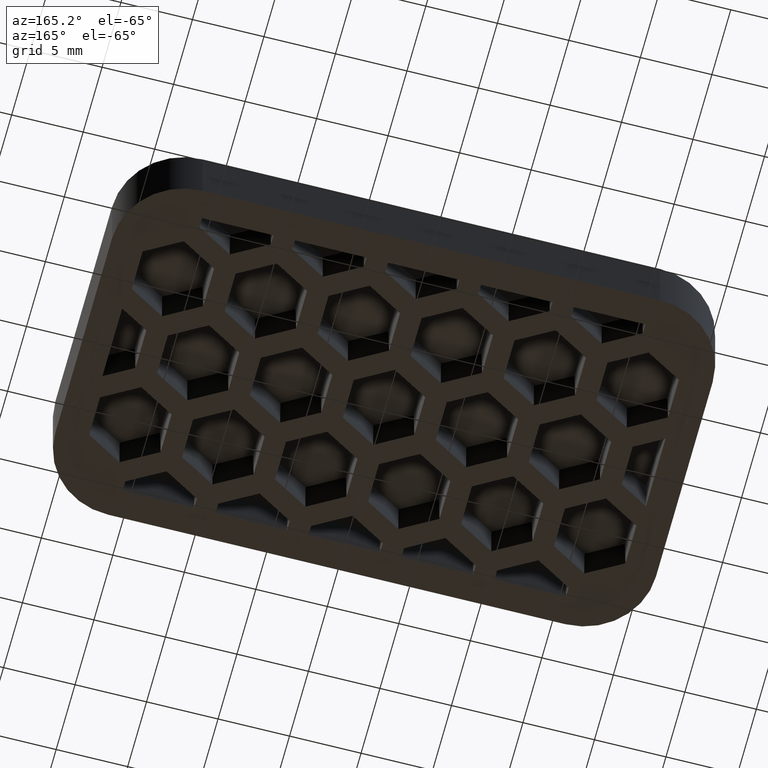
[diagram: clean part render]
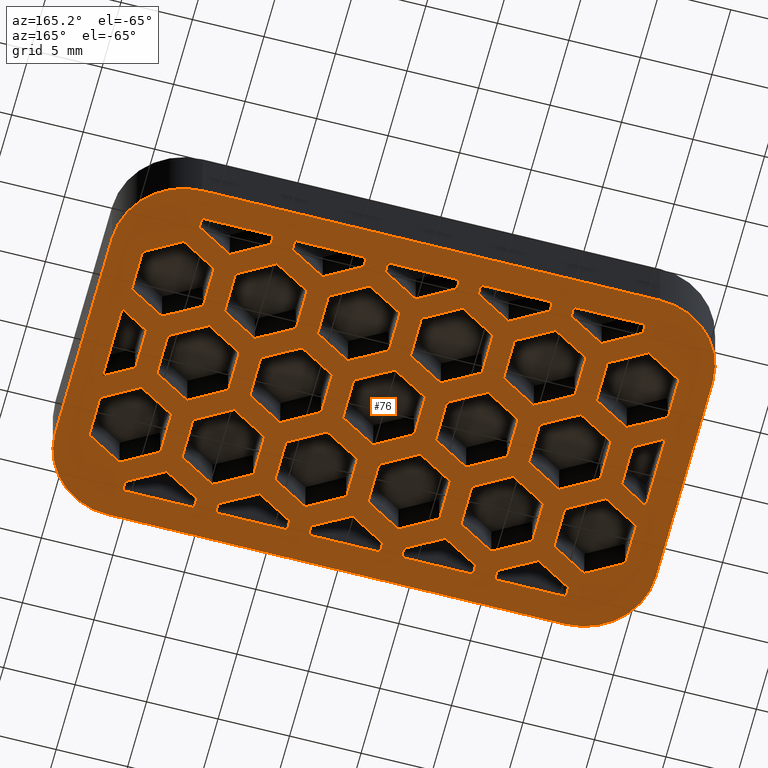
[diagram: same view with one face highlighted and labeled with its STEP entity id]
A machine part, auxiliary view. The second image highlights one B-rep face of the part: STEP entity #76.
In plain terms, the highlighted planar face has unit normal (0, 0, 1).
Its self-contained STEP definition (entity closure, byte-faithful):
#76 = ADVANCED_FACE( '', ( #321, #322, #323, #324, #325, #326, #327, #328, #329, #330, #331, #332, #333, #334, #335, #336, #337, #338, #339, #340, #341, #342, #343, #344, #345, #346, #347, #348, #349, #350 ), #351, .F. );
#321 = FACE_BOUND( '', #831, .T. );
#322 = FACE_BOUND( '', #832, .T. );
#323 = FACE_OUTER_BOUND( '', #833, .T. );
#324 = FACE_BOUND( '', #834, .T. );
#325 = FACE_BOUND( '', #835, .T. );
#326 = FACE_BOUND( '', #836, .T. );
#327 = FACE_BOUND( '', #837, .T. );
#328 = FACE_BOUND( '', #838, .T. );
#329 = FACE_BOUND( '', #839, .T. );
#330 = FACE_BOUND( '', #840, .T. );
#331 = FACE_BOUND( '', #841, .T. );
#332 = FACE_BOUND( '', #842, .T. );
#333 = FACE_BOUND( '', #843, .T. );
#334 = FACE_BOUND( '', #844, .T. );
#335 = FACE_BOUND( '', #845, .T. );
#336 = FACE_BOUND( '', #846, .T. );
#337 = FACE_BOUND( '', #847, .T. );
#338 = FACE_BOUND( '', #848, .T. );
#339 = FACE_BOUND( '', #849, .T. );
#340 = FACE_BOUND( '', #850, .T. );
#341 = FACE_BOUND( '', #851, .T. );
#342 = FACE_BOUND( '', #852, .T. );
#343 = FACE_BOUND( '', #853, .T. );
#344 = FACE_BOUND( '', #854, .T. );
#345 = FACE_BOUND( '', #855, .T. );
#346 = FACE_BOUND( '', #856, .T. );
#347 = FACE_BOUND( '', #857, .T. );
#348 = FACE_BOUND( '', #858, .T. );
#349 = FACE_BOUND( '', #859, .T. );
#350 = FACE_BOUND( '', #860, .T. );
#351 = PLANE( '', #861 );
#831 = EDGE_LOOP( '', ( #1373, #1374, #1375, #1376, #1377 ) );
#832 = EDGE_LOOP( '', ( #1378, #1379, #1380, #1381, #1382, #1383 ) );
#833 = EDGE_LOOP( '', ( #1384, #1385, #1386, #1387, #1388, #1389, #1390, #1391 ) );
#834 = EDGE_LOOP( '', ( #1392, #1393, #1394, #1395, #1396, #1397 ) );
#835 = EDGE_LOOP( '', ( #1398, #1399, #1400, #1401, #1402, #1403 ) );
#836 = EDGE_LOOP( '', ( #1404, #1405, #1406, #1407, #1408, #1409 ) );
#837 = EDGE_LOOP( '', ( #1410, #1411, #1412, #1413, #1414, #1415 ) );
#838 = EDGE_LOOP( '', ( #1416, #1417, #1418, #1419, #1420, #1421 ) );
#839 = EDGE_LOOP( '', ( #1422, #1423, #1424, #1425, #1426, #1427 ) );
#840 = EDGE_LOOP( '', ( #1428, #1429, #1430, #1431, #1432, #1433 ) );
#841 = EDGE_LOOP( '', ( #1434, #1435, #1436, #1437, #1438, #1439 ) );
#842 = EDGE_LOOP( '', ( #1440, #1441, #1442, #1443, #1444, #1445 ) );
#843 = EDGE_LOOP( '', ( #1446, #1447, #1448, #1449, #1450, #1451 ) );
#844 = EDGE_LOOP( '', ( #1452, #1453, #1454, #1455, #1456, #1457 ) );
#845 = EDGE_LOOP( '', ( #1458, #1459, #1460, #1461, #1462, #1463 ) );
#846 = EDGE_LOOP( '', ( #1464, #1465, #1466, #1467, #1468, #1469 ) );
#847 = EDGE_LOOP( '', ( #1470, #1471, #1472, #1473, #1474, #1475 ) );
#848 = EDGE_LOOP( '', ( #1476, #1477, #1478, #1479, #1480, #1481 ) );
#849 = EDGE_LOOP( '', ( #1482, #1483, #1484, #1485, #1486, #1487 ) );
#850 = EDGE_LOOP( '', ( #1488, #1489, #1490, #1491, #1492 ) );
#851 = EDGE_LOOP( '', ( #1493, #1494, #1495, #1496, #1497 ) );
#852 = EDGE_LOOP( '', ( #1498, #1499, #1500, #1501, #1502 ) );
#853 = EDGE_LOOP( '', ( #1503, #1504, #1505, #1506, #1507 ) );
#854 = EDGE_LOOP( '', ( #1508, #1509, #1510, #1511, #1512 ) );
#855 = EDGE_LOOP( '', ( #1513, #1514, #1515, #1516 ) );
#856 = EDGE_LOOP( '', ( #1517, #1518, #1519, #1520, #1521 ) );
#857 = EDGE_LOOP( '', ( #1522, #1523, #1524, #1525, #1526 ) );
#858 = EDGE_LOOP( '', ( #1527, #1528, #1529, #1530, #1531 ) );
#859 = EDGE_LOOP( '', ( #1532, #1533, #1534, #1535, #1536 ) );
#860 = EDGE_LOOP( '', ( #1537, #1538, #1539, #1540 ) );
#861 = AXIS2_PLACEMENT_3D( '', #1541, #1542, #1543 );
#1373 = ORIENTED_EDGE( '', *, *, #3262, .T. );
#1374 = ORIENTED_EDGE( '', *, *, #3263, .F. );
#1375 = ORIENTED_EDGE( '', *, *, #3264, .F. );
#1376 = ORIENTED_EDGE( '', *, *, #3265, .F. );
#1377 = ORIENTED_EDGE( '', *, *, #3266, .F. );
#1378 = ORIENTED_EDGE( '', *, *, #3267, .T. );
#1379 = ORIENTED_EDGE( '', *, *, #3268, .T. );
#1380 = ORIENTED_EDGE( '', *, *, #3269, .T. );
#1381 = ORIENTED_EDGE( '', *, *, #3270, .T. );
#1382 = ORIENTED_EDGE( '', *, *, #3271, .T. );
#1383 = ORIENTED_EDGE( '', *, *, #3272, .T. );
#1384 = ORIENTED_EDGE( '', *, *, #3273, .T. );
#1385 = ORIENTED_EDGE( '', *, *, #3274, .T. );
#1386 = ORIENTED_EDGE( '', *, *, #3275, .T. );
#1387 = ORIENTED_EDGE( '', *, *, #3276, .T. );
#1388 = ORIENTED_EDGE( '', *, *, #3277, .T. );
#1389 = ORIENTED_EDGE( '', *, *, #3278, .T. );
#1390 = ORIENTED_EDGE( '', *, *, #3279, .T. );
#1391 = ORIENTED_EDGE( '', *, *, #3280, .T. );
#1392 = ORIENTED_EDGE( '', *, *, #3281, .T. );
#1393 = ORIENTED_EDGE( '', *, *, #3282, .T. );
#1394 = ORIENTED_EDGE( '', *, *, #3283, .T. );
#1395 = ORIENTED_EDGE( '', *, *, #3284, .T. );
#1396 = ORIENTED_EDGE( '', *, *, #3285, .T. );
#1397 = ORIENTED_EDGE( '', *, *, #3286, .T. );
#1398 = ORIENTED_EDGE( '', *, *, #3287, .T. );
#1399 = ORIENTED_EDGE( '', *, *, #3288, .T. );
#1400 = ORIENTED_EDGE( '', *, *, #3289, .T. );
#1401 = ORIENTED_EDGE( '', *, *, #3290, .T. );
#1402 = ORIENTED_EDGE( '', *, *, #3291, .T. );
#1403 = ORIENTED_EDGE( '', *, *, #3292, .T. );
#1404 = ORIENTED_EDGE( '', *, *, #3293, .T. );
#1405 = ORIENTED_EDGE( '', *, *, #3294, .T. );
#1406 = ORIENTED_EDGE( '', *, *, #3295, .T. );
#1407 = ORIENTED_EDGE( '', *, *, #3296, .T. );
#1408 = ORIENTED_EDGE( '', *, *, #3297, .T. );
#1409 = ORIENTED_EDGE( '', *, *, #3298, .T. );
#1410 = ORIENTED_EDGE( '', *, *, #3299, .F. );
#1411 = ORIENTED_EDGE( '', *, *, #3300, .F. );
#1412 = ORIENTED_EDGE( '', *, *, #3301, .F. );
#1413 = ORIENTED_EDGE( '', *, *, #3302, .F. );
#1414 = ORIENTED_EDGE( '', *, *, #3303, .F. );
#1415 = ORIENTED_EDGE( '', *, *, #3304, .F. );
#1416 = ORIENTED_EDGE( '', *, *, #3305, .F. );
#1417 = ORIENTED_EDGE( '', *, *, #3306, .F. );
#1418 = ORIENTED_EDGE( '', *, *, #3307, .F. );
#1419 = ORIENTED_EDGE( '', *, *, #3308, .F. );
#1420 = ORIENTED_EDGE( '', *, *, #3309, .F. );
#1421 = ORIENTED_EDGE( '', *, *, #3310, .F. );
#1422 = ORIENTED_EDGE( '', *, *, #3311, .F. );
#1423 = ORIENTED_EDGE( '', *, *, #3312, .F. );
#1424 = ORIENTED_EDGE( '', *, *, #3313, .F. );
#1425 = ORIENTED_EDGE( '', *, *, #3314, .F. );
#1426 = ORIENTED_EDGE( '', *, *, #3315, .F. );
#1427 = ORIENTED_EDGE( '', *, *, #3316, .F. );
#1428 = ORIENTED_EDGE( '', *, *, #3317, .F. );
#1429 = ORIENTED_EDGE( '', *, *, #3318, .F. );
#1430 = ORIENTED_EDGE( '', *, *, #3319, .F. );
#1431 = ORIENTED_EDGE( '', *, *, #3320, .F. );
#1432 = ORIENTED_EDGE( '', *, *, #3321, .F. );
#1433 = ORIENTED_EDGE( '', *, *, #3322, .F. );
#1434 = ORIENTED_EDGE( '', *, *, #3323, .F. );
#1435 = ORIENTED_EDGE( '', *, *, #3324, .F. );
#1436 = ORIENTED_EDGE( '', *, *, #3325, .F. );
#1437 = ORIENTED_EDGE( '', *, *, #3326, .F. );
#1438 = ORIENTED_EDGE( '', *, *, #3327, .F. );
#1439 = ORIENTED_EDGE( '', *, *, #3328, .F. );
#1440 = ORIENTED_EDGE( '', *, *, #3329, .F. );
#1441 = ORIENTED_EDGE( '', *, *, #3330, .F. );
#1442 = ORIENTED_EDGE( '', *, *, #3331, .F. );
#1443 = ORIENTED_EDGE( '', *, *, #3332, .F. );
#1444 = ORIENTED_EDGE( '', *, *, #3333, .F. );
#1445 = ORIENTED_EDGE( '', *, *, #3334, .F. );
#1446 = ORIENTED_EDGE( '', *, *, #3335, .F. );
#1447 = ORIENTED_EDGE( '', *, *, #3336, .F. );
#1448 = ORIENTED_EDGE( '', *, *, #3337, .F. );
#1449 = ORIENTED_EDGE( '', *, *, #3338, .F. );
#1450 = ORIENTED_EDGE( '', *, *, #3339, .F. );
#1451 = ORIENTED_EDGE( '', *, *, #3340, .F. );
#1452 = ORIENTED_EDGE( '', *, *, #3341, .F. );
#1453 = ORIENTED_EDGE( '', *, *, #3342, .F. );
#1454 = ORIENTED_EDGE( '', *, *, #3343, .F. );
#1455 = ORIENTED_EDGE( '', *, *, #3344, .F. );
#1456 = ORIENTED_EDGE( '', *, *, #3345, .F. );
#1457 = ORIENTED_EDGE( '', *, *, #3346, .F. );
#1458 = ORIENTED_EDGE( '', *, *, #3347, .F. );
#1459 = ORIENTED_EDGE( '', *, *, #3348, .F. );
#1460 = ORIENTED_EDGE( '', *, *, #3349, .F. );
#1461 = ORIENTED_EDGE( '', *, *, #3350, .F. );
#1462 = ORIENTED_EDGE( '', *, *, #3351, .F. );
#1463 = ORIENTED_EDGE( '', *, *, #3352, .F. );
#1464 = ORIENTED_EDGE( '', *, *, #3353, .F. );
#1465 = ORIENTED_EDGE( '', *, *, #3354, .F. );
#1466 = ORIENTED_EDGE( '', *, *, #3355, .F. );
#1467 = ORIENTED_EDGE( '', *, *, #3356, .F. );
#1468 = ORIENTED_EDGE( '', *, *, #3357, .F. );
#1469 = ORIENTED_EDGE( '', *, *, #3358, .F. );
#1470 = ORIENTED_EDGE( '', *, *, #3359, .F. );
#1471 = ORIENTED_EDGE( '', *, *, #3360, .F. );
#1472 = ORIENTED_EDGE( '', *, *, #3361, .F. );
#1473 = ORIENTED_EDGE( '', *, *, #3362, .F. );
#1474 = ORIENTED_EDGE( '', *, *, #3363, .F. );
#1475 = ORIENTED_EDGE( '', *, *, #3364, .F. );
#1476 = ORIENTED_EDGE( '', *, *, #3365, .T. );
#1477 = ORIENTED_EDGE( '', *, *, #3366, .T. );
#1478 = ORIENTED_EDGE( '', *, *, #3367, .T. );
#1479 = ORIENTED_EDGE( '', *, *, #3368, .T. );
#1480 = ORIENTED_EDGE( '', *, *, #3369, .T. );
#1481 = ORIENTED_EDGE( '', *, *, #3370, .T. );
#1482 = ORIENTED_EDGE( '', *, *, #3371, .T. );
#1483 = ORIENTED_EDGE( '', *, *, #3372, .T. );
#1484 = ORIENTED_EDGE( '', *, *, #3373, .T. );
#1485 = ORIENTED_EDGE( '', *, *, #3374, .T. );
#1486 = ORIENTED_EDGE( '', *, *, #3375, .T. );
#1487 = ORIENTED_EDGE( '', *, *, #3376, .T. );
#1488 = ORIENTED_EDGE( '', *, *, #3377, .T. );
#1489 = ORIENTED_EDGE( '', *, *, #3378, .F. );
#1490 = ORIENTED_EDGE( '', *, *, #3379, .F. );
#1491 = ORIENTED_EDGE( '', *, *, #3380, .F. );
#1492 = ORIENTED_EDGE( '', *, *, #3381, .F. );
#1493 = ORIENTED_EDGE( '', *, *, #3382, .T. );
#1494 = ORIENTED_EDGE( '', *, *, #3383, .F. );
#1495 = ORIENTED_EDGE( '', *, *, #3384, .F. );
#1496 = ORIENTED_EDGE( '', *, *, #3385, .F. );
#1497 = ORIENTED_EDGE( '', *, *, #3386, .F. );
#1498 = ORIENTED_EDGE( '', *, *, #3387, .T. );
#1499 = ORIENTED_EDGE( '', *, *, #3388, .F. );
#1500 = ORIENTED_EDGE( '', *, *, #3389, .F. );
#1501 = ORIENTED_EDGE( '', *, *, #3390, .F. );
#1502 = ORIENTED_EDGE( '', *, *, #3391, .F. );
#1503 = ORIENTED_EDGE( '', *, *, #3392, .T. );
#1504 = ORIENTED_EDGE( '', *, *, #3393, .F. );
#1505 = ORIENTED_EDGE( '', *, *, #3394, .F. );
#1506 = ORIENTED_EDGE( '', *, *, #3395, .F. );
#1507 = ORIENTED_EDGE( '', *, *, #3396, .F. );
#1508 = ORIENTED_EDGE( '', *, *, #3397, .T. );
#1509 = ORIENTED_EDGE( '', *, *, #3398, .F. );
#1510 = ORIENTED_EDGE( '', *, *, #3399, .F. );
#1511 = ORIENTED_EDGE( '', *, *, #3400, .F. );
#1512 = ORIENTED_EDGE( '', *, *, #3401, .F. );
#1513 = ORIENTED_EDGE( '', *, *, #3402, .T. );
#1514 = ORIENTED_EDGE( '', *, *, #3403, .F. );
#1515 = ORIENTED_EDGE( '', *, *, #3404, .F. );
#1516 = ORIENTED_EDGE( '', *, *, #3405, .F. );
#1517 = ORIENTED_EDGE( '', *, *, #3406, .T. );
#1518 = ORIENTED_EDGE( '', *, *, #3407, .F. );
#1519 = ORIENTED_EDGE( '', *, *, #3408, .F. );
#1520 = ORIENTED_EDGE( '', *, *, #3409, .F. );
#1521 = ORIENTED_EDGE( '', *, *, #3410, .F. );
#1522 = ORIENTED_EDGE( '', *, *, #3411, .T. );
#1523 = ORIENTED_EDGE( '', *, *, #3412, .F. );
#1524 = ORIENTED_EDGE( '', *, *, #3413, .F. );
#1525 = ORIENTED_EDGE( '', *, *, #3414, .F. );
#1526 = ORIENTED_EDGE( '', *, *, #3415, .F. );
#1527 = ORIENTED_EDGE( '', *, *, #3416, .T. );
#1528 = ORIENTED_EDGE( '', *, *, #3417, .F. );
#1529 = ORIENTED_EDGE( '', *, *, #3418, .F. );
#1530 = ORIENTED_EDGE( '', *, *, #3419, .F. );
#1531 = ORIENTED_EDGE( '', *, *, #3420, .F. );
#1532 = ORIENTED_EDGE( '', *, *, #3421, .T. );
#1533 = ORIENTED_EDGE( '', *, *, #3422, .F. );
#1534 = ORIENTED_EDGE( '', *, *, #3423, .F. );
#1535 = ORIENTED_EDGE( '', *, *, #3424, .F. );
#1536 = ORIENTED_EDGE( '', *, *, #3425, .F. );
#1537 = ORIENTED_EDGE( '', *, *, #3426, .T. );
#1538 = ORIENTED_EDGE( '', *, *, #3427, .F. );
#1539 = ORIENTED_EDGE( '', *, *, #3428, .F. );
#1540 = ORIENTED_EDGE( '', *, *, #3429, .F. );
#1541 = CARTESIAN_POINT( '', ( -15.9999999999999, -7.50000000000001, -2.03574543290383E-014 ) );
#1542 = DIRECTION( '', ( 8.75234327709265E-017, 7.88383919196168E-016, 1.00000000000000 ) );
#1543 = DIRECTION( '', ( -0.936454750452510, 0.350788398261583, -1.94594197835768E-016 ) );
#3262 = EDGE_CURVE( '', #3892, #3893, #3894, .T. );
#3263 = EDGE_CURVE( '', #3895, #3893, #3896, .T. );
#3264 = EDGE_CURVE( '', #3897, #3895, #3898, .T. );
#3265 = EDGE_CURVE( '', #3899, #3897, #3900, .T. );
#3266 = EDGE_CURVE( '', #3892, #3899, #3901, .T. );
#3267 = EDGE_CURVE( '', #3902, #3903, #3904, .F. );
#3268 = EDGE_CURVE( '', #3903, #3905, #3906, .F. );
#3269 = EDGE_CURVE( '', #3905, #3907, #3908, .F. );
#3270 = EDGE_CURVE( '', #3907, #3909, #3910, .F. );
#3271 = EDGE_CURVE( '', #3909, #3911, #3912, .F. );
#3272 = EDGE_CURVE( '', #3911, #3902, #3913, .F. );
#3273 = EDGE_CURVE( '', #3914, #3915, #3916, .T. );
#3274 = EDGE_CURVE( '', #3915, #3917, #3918, .T. );
#3275 = EDGE_CURVE( '', #3917, #3919, #3920, .T. );
#3276 = EDGE_CURVE( '', #3919, #3921, #3922, .T. );
#3277 = EDGE_CURVE( '', #3921, #3923, #3924, .T. );
#3278 = EDGE_CURVE( '', #3923, #3925, #3926, .T. );
#3279 = EDGE_CURVE( '', #3925, #3927, #3928, .T. );
#3280 = EDGE_CURVE( '', #3927, #3914, #3929, .T. );
#3281 = EDGE_CURVE( '', #3930, #3931, #3932, .F. );
#3282 = EDGE_CURVE( '', #3931, #3933, #3934, .F. );
#3283 = EDGE_CURVE( '', #3933, #3935, #3936, .F. );
#3284 = EDGE_CURVE( '', #3935, #3937, #3938, .F. );
#3285 = EDGE_CURVE( '', #3937, #3939, #3940, .F. );
#3286 = EDGE_CURVE( '', #3939, #3930, #3941, .F. );
#3287 = EDGE_CURVE( '', #3942, #3943, #3944, .F. );
#3288 = EDGE_CURVE( '', #3943, #3945, #3946, .F. );
#3289 = EDGE_CURVE( '', #3945, #3947, #3948, .F. );
#3290 = EDGE_CURVE( '', #3947, #3949, #3950, .F. );
#3291 = EDGE_CURVE( '', #3949, #3951, #3952, .F. );
#3292 = EDGE_CURVE( '', #3951, #3942, #3953, .F. );
#3293 = EDGE_CURVE( '', #3954, #3955, #3956, .F. );
#3294 = EDGE_CURVE( '', #3955, #3957, #3958, .F. );
#3295 = EDGE_CURVE( '', #3957, #3959, #3960, .F. );
#3296 = EDGE_CURVE( '', #3959, #3961, #3962, .F. );
#3297 = EDGE_CURVE( '', #3961, #3963, #3964, .F. );
#3298 = EDGE_CURVE( '', #3963, #3954, #3965, .F. );
#3299 = EDGE_CURVE( '', #3966, #3967, #3968, .T. );
#3300 = EDGE_CURVE( '', #3969, #3966, #3970, .T. );
#3301 = EDGE_CURVE( '', #3971, #3969, #3972, .T. );
#3302 = EDGE_CURVE( '', #3973, #3971, #3974, .T. );
#3303 = EDGE_CURVE( '', #3975, #3973, #3976, .T. );
#3304 = EDGE_CURVE( '', #3967, #3975, #3977, .T. );
#3305 = EDGE_CURVE( '', #3978, #3979, #3980, .T. );
#3306 = EDGE_CURVE( '', #3981, #3978, #3982, .T. );
#3307 = EDGE_CURVE( '', #3983, #3981, #3984, .T. );
#3308 = EDGE_CURVE( '', #3985, #3983, #3986, .T. );
#3309 = EDGE_CURVE( '', #3987, #3985, #3988, .T. );
#3310 = EDGE_CURVE( '', #3979, #3987, #3989, .T. );
#3311 = EDGE_CURVE( '', #3990, #3991, #3992, .T. );
#3312 = EDGE_CURVE( '', #3993, #3990, #3994, .T. );
#3313 = EDGE_CURVE( '', #3995, #3993, #3996, .T. );
#3314 = EDGE_CURVE( '', #3997, #3995, #3998, .T. );
#3315 = EDGE_CURVE( '', #3999, #3997, #4000, .T. );
#3316 = EDGE_CURVE( '', #3991, #3999, #4001, .T. );
#3317 = EDGE_CURVE( '', #4002, #4003, #4004, .T. );
#3318 = EDGE_CURVE( '', #4005, #4002, #4006, .T. );
#3319 = EDGE_CURVE( '', #4007, #4005, #4008, .T. );
#3320 = EDGE_CURVE( '', #4009, #4007, #4010, .T. );
#3321 = EDGE_CURVE( '', #4011, #4009, #4012, .T. );
#3322 = EDGE_CURVE( '', #4003, #4011, #4013, .T. );
#3323 = EDGE_CURVE( '', #4014, #4015, #4016, .T. );
#3324 = EDGE_CURVE( '', #4017, #4014, #4018, .T. );
#3325 = EDGE_CURVE( '', #4019, #4017, #4020, .T. );
#3326 = EDGE_CURVE( '', #4021, #4019, #4022, .T. );
#3327 = EDGE_CURVE( '', #4023, #4021, #4024, .T. );
#3328 = EDGE_CURVE( '', #4015, #4023, #4025, .T. );
#3329 = EDGE_CURVE( '', #4026, #4027, #4028, .T. );
#3330 = EDGE_CURVE( '', #4029, #4026, #4030, .T. );
#3331 = EDGE_CURVE( '', #4031, #4029, #4032, .T. );
#3332 = EDGE_CURVE( '', #4033, #4031, #4034, .T. );
#3333 = EDGE_CURVE( '', #4035, #4033, #4036, .T. );
#3334 = EDGE_CURVE( '', #4027, #4035, #4037, .T. );
#3335 = EDGE_CURVE( '', #4038, #4039, #4040, .T. );
#3336 = EDGE_CURVE( '', #4041, #4038, #4042, .T. );
#3337 = EDGE_CURVE( '', #4043, #4041, #4044, .T. );
#3338 = EDGE_CURVE( '', #4045, #4043, #4046, .T. );
#3339 = EDGE_CURVE( '', #4047, #4045, #4048, .T. );
#3340 = EDGE_CURVE( '', #4039, #4047, #4049, .T. );
#3341 = EDGE_CURVE( '', #4050, #4051, #4052, .T. );
#3342 = EDGE_CURVE( '', #4053, #4050, #4054, .T. );
#3343 = EDGE_CURVE( '', #4055, #4053, #4056, .T. );
#3344 = EDGE_CURVE( '', #4057, #4055, #4058, .T. );
#3345 = EDGE_CURVE( '', #4059, #4057, #4060, .T. );
#3346 = EDGE_CURVE( '', #4051, #4059, #4061, .T. );
#3347 = EDGE_CURVE( '', #4062, #4063, #4064, .T. );
#3348 = EDGE_CURVE( '', #4065, #4062, #4066, .T. );
#3349 = EDGE_CURVE( '', #4067, #4065, #4068, .T. );
#3350 = EDGE_CURVE( '', #4069, #4067, #4070, .T. );
#3351 = EDGE_CURVE( '', #4071, #4069, #4072, .T. );
#3352 = EDGE_CURVE( '', #4063, #4071, #4073, .T. );
#3353 = EDGE_CURVE( '', #4074, #4075, #4076, .T. );
#3354 = EDGE_CURVE( '', #4077, #4074, #4078, .T. );
#3355 = EDGE_CURVE( '', #4079, #4077, #4080, .T. );
#3356 = EDGE_CURVE( '', #4081, #4079, #4082, .T. );
#3357 = EDGE_CURVE( '', #4083, #4081, #4084, .T. );
#3358 = EDGE_CURVE( '', #4075, #4083, #4085, .T. );
#3359 = EDGE_CURVE( '', #4086, #4087, #4088, .T. );
#3360 = EDGE_CURVE( '', #4089, #4086, #4090, .T. );
#3361 = EDGE_CURVE( '', #4091, #4089, #4092, .T. );
#3362 = EDGE_CURVE( '', #4093, #4091, #4094, .T. );
#3363 = EDGE_CURVE( '', #4095, #4093, #4096, .T. );
#3364 = EDGE_CURVE( '', #4087, #4095, #4097, .T. );
#3365 = EDGE_CURVE( '', #4098, #4099, #4100, .F. );
#3366 = EDGE_CURVE( '', #4099, #4101, #4102, .F. );
#3367 = EDGE_CURVE( '', #4101, #4103, #4104, .F. );
#3368 = EDGE_CURVE( '', #4103, #4105, #4106, .F. );
#3369 = EDGE_CURVE( '', #4105, #4107, #4108, .F. );
#3370 = EDGE_CURVE( '', #4107, #4098, #4109, .F. );
#3371 = EDGE_CURVE( '', #4110, #4111, #4112, .F. );
#3372 = EDGE_CURVE( '', #4111, #4113, #4114, .F. );
#3373 = EDGE_CURVE( '', #4113, #4115, #4116, .F. );
#3374 = EDGE_CURVE( '', #4115, #4117, #4118, .F. );
#3375 = EDGE_CURVE( '', #4117, #4119, #4120, .F. );
#3376 = EDGE_CURVE( '', #4119, #4110, #4121, .F. );
#3377 = EDGE_CURVE( '', #4122, #4123, #4124, .T. );
#3378 = EDGE_CURVE( '', #4125, #4123, #4126, .T. );
#3379 = EDGE_CURVE( '', #4127, #4125, #4128, .T. );
#3380 = EDGE_CURVE( '', #4129, #4127, #4130, .T. );
#3381 = EDGE_CURVE( '', #4122, #4129, #4131, .T. );
#3382 = EDGE_CURVE( '', #4132, #4133, #4134, .T. );
#3383 = EDGE_CURVE( '', #4135, #4133, #4136, .T. );
#3384 = EDGE_CURVE( '', #4137, #4135, #4138, .T. );
#3385 = EDGE_CURVE( '', #4139, #4137, #4140, .T. );
#3386 = EDGE_CURVE( '', #4132, #4139, #4141, .T. );
#3387 = EDGE_CURVE( '', #4142, #4143, #4144, .T. );
#3388 = EDGE_CURVE( '', #4145, #4143, #4146, .T. );
#3389 = EDGE_CURVE( '', #4147, #4145, #4148, .T. );
#3390 = EDGE_CURVE( '', #4149, #4147, #4150, .T. );
#3391 = EDGE_CURVE( '', #4142, #4149, #4151, .T. );
#3392 = EDGE_CURVE( '', #4152, #4153, #4154, .T. );
#3393 = EDGE_CURVE( '', #4155, #4153, #4156, .T. );
#3394 = EDGE_CURVE( '', #4157, #4155, #4158, .T. );
#3395 = EDGE_CURVE( '', #4159, #4157, #4160, .T. );
#3396 = EDGE_CURVE( '', #4152, #4159, #4161, .T. );
#3397 = EDGE_CURVE( '', #4162, #4163, #4164, .T. );
#3398 = EDGE_CURVE( '', #4165, #4163, #4166, .T. );
#3399 = EDGE_CURVE( '', #4167, #4165, #4168, .T. );
#3400 = EDGE_CURVE( '', #4169, #4167, #4170, .T. );
#3401 = EDGE_CURVE( '', #4162, #4169, #4171, .T. );
#3402 = EDGE_CURVE( '', #4172, #4173, #4174, .F. );
#3403 = EDGE_CURVE( '', #4175, #4173, #4176, .T. );
#3404 = EDGE_CURVE( '', #4177, #4175, #4178, .T. );
#3405 = EDGE_CURVE( '', #4172, #4177, #4179, .T. );
#3406 = EDGE_CURVE( '', #4180, #4181, #4182, .T. );
#3407 = EDGE_CURVE( '', #4183, #4181, #4184, .T. );
#3408 = EDGE_CURVE( '', #4185, #4183, #4186, .T. );
#3409 = EDGE_CURVE( '', #4187, #4185, #4188, .T. );
#3410 = EDGE_CURVE( '', #4180, #4187, #4189, .T. );
#3411 = EDGE_CURVE( '', #4190, #4191, #4192, .T. );
#3412 = EDGE_CURVE( '', #4193, #4191, #4194, .T. );
#3413 = EDGE_CURVE( '', #4195, #4193, #4196, .T. );
#3414 = EDGE_CURVE( '', #4197, #4195, #4198, .T. );
#3415 = EDGE_CURVE( '', #4190, #4197, #4199, .T. );
#3416 = EDGE_CURVE( '', #4200, #4201, #4202, .T. );
#3417 = EDGE_CURVE( '', #4203, #4201, #4204, .T. );
#3418 = EDGE_CURVE( '', #4205, #4203, #4206, .T. );
#3419 = EDGE_CURVE( '', #4207, #4205, #4208, .T. );
#3420 = EDGE_CURVE( '', #4200, #4207, #4209, .T. );
#3421 = EDGE_CURVE( '', #4210, #4211, #4212, .T. );
#3422 = EDGE_CURVE( '', #4213, #4211, #4214, .T. );
#3423 = EDGE_CURVE( '', #4215, #4213, #4216, .T. );
#3424 = EDGE_CURVE( '', #4217, #4215, #4218, .T. );
#3425 = EDGE_CURVE( '', #4210, #4217, #4219, .T. );
#3426 = EDGE_CURVE( '', #4220, #4221, #4222, .T. );
#3427 = EDGE_CURVE( '', #4223, #4221, #4224, .T. );
#3428 = EDGE_CURVE( '', #4225, #4223, #4226, .T. );
#3429 = EDGE_CURVE( '', #4220, #4225, #4227, .T. );
#3892 = VERTEX_POINT( '', #4910 );
#3893 = VERTEX_POINT( '', #4911 );
#3894 = LINE( '', #4912, #4913 );
#3895 = VERTEX_POINT( '', #4914 );
#3896 = LINE( '', #4915, #4916 );
#3897 = VERTEX_POINT( '', #4917 );
#3898 = LINE( '', #4918, #4919 );
#3899 = VERTEX_POINT( '', #4920 );
#3900 = LINE( '', #4921, #4922 );
#3901 = LINE( '', #4923, #4924 );
#3902 = VERTEX_POINT( '', #4925 );
#3903 = VERTEX_POINT( '', #4926 );
#3904 = LINE( '', #4927, #4928 );
#3905 = VERTEX_POINT( '', #4929 );
#3906 = LINE( '', #4930, #4931 );
#3907 = VERTEX_POINT( '', #4932 );
#3908 = LINE( '', #4933, #4934 );
#3909 = VERTEX_POINT( '', #4935 );
#3910 = LINE( '', #4936, #4937 );
#3911 = VERTEX_POINT( '', #4938 );
#3912 = LINE( '', #4939, #4940 );
#3913 = LINE( '', #4941, #4942 );
#3914 = VERTEX_POINT( '', #4943 );
#3915 = VERTEX_POINT( '', #4944 );
#3916 = LINE( '', #4945, #4946 );
#3917 = VERTEX_POINT( '', #4947 );
#3918 = CIRCLE( '', #4948, 5.00000000000000 );
#3919 = VERTEX_POINT( '', #4949 );
#3920 = LINE( '', #4950, #4951 );
#3921 = VERTEX_POINT( '', #4952 );
#3922 = CIRCLE( '', #4953, 4.99999999999998 );
#3923 = VERTEX_POINT( '', #4954 );
#3924 = LINE( '', #4955, #4956 );
#3925 = VERTEX_POINT( '', #4957 );
#3926 = CIRCLE( '', #4958, 4.99999999999998 );
#3927 = VERTEX_POINT( '', #4959 );
#3928 = LINE( '', #4960, #4961 );
#3929 = CIRCLE( '', #4962, 5.00000000000000 );
#3930 = VERTEX_POINT( '', #4963 );
#3931 = VERTEX_POINT( '', #4964 );
#3932 = LINE( '', #4965, #4966 );
#3933 = VERTEX_POINT( '', #4967 );
#3934 = LINE( '', #4968, #4969 );
#3935 = VERTEX_POINT( '', #4970 );
#3936 = LINE( '', #4971, #4972 );
#3937 = VERTEX_POINT( '', #4973 );
#3938 = LINE( '', #4974, #4975 );
#3939 = VERTEX_POINT( '', #4976 );
#3940 = LINE( '', #4977, #4978 );
#3941 = LINE( '', #4979, #4980 );
#3942 = VERTEX_POINT( '', #4981 );
#3943 = VERTEX_POINT( '', #4982 );
#3944 = LINE( '', #4983, #4984 );
#3945 = VERTEX_POINT( '', #4985 );
#3946 = LINE( '', #4986, #4987 );
#3947 = VERTEX_POINT( '', #4988 );
#3948 = LINE( '', #4989, #4990 );
#3949 = VERTEX_POINT( '', #4991 );
#3950 = LINE( '', #4992, #4993 );
#3951 = VERTEX_POINT( '', #4994 );
#3952 = LINE( '', #4995, #4996 );
#3953 = LINE( '', #4997, #4998 );
#3954 = VERTEX_POINT( '', #4999 );
#3955 = VERTEX_POINT( '', #5000 );
#3956 = LINE( '', #5001, #5002 );
#3957 = VERTEX_POINT( '', #5003 );
#3958 = LINE( '', #5004, #5005 );
#3959 = VERTEX_POINT( '', #5006 );
#3960 = LINE( '', #5007, #5008 );
#3961 = VERTEX_POINT( '', #5009 );
#3962 = LINE( '', #5010, #5011 );
#3963 = VERTEX_POINT( '', #5012 );
#3964 = LINE( '', #5013, #5014 );
#3965 = LINE( '', #5015, #5016 );
#3966 = VERTEX_POINT( '', #5017 );
#3967 = VERTEX_POINT( '', #5018 );
#3968 = LINE( '', #5019, #5020 );
#3969 = VERTEX_POINT( '', #5021 );
#3970 = LINE( '', #5022, #5023 );
#3971 = VERTEX_POINT( '', #5024 );
#3972 = LINE( '', #5025, #5026 );
#3973 = VERTEX_POINT( '', #5027 );
#3974 = LINE( '', #5028, #5029 );
#3975 = VERTEX_POINT( '', #5030 );
#3976 = LINE( '', #5031, #5032 );
#3977 = LINE( '', #5033, #5034 );
#3978 = VERTEX_POINT( '', #5035 );
#3979 = VERTEX_POINT( '', #5036 );
#3980 = LINE( '', #5037, #5038 );
#3981 = VERTEX_POINT( '', #5039 );
#3982 = LINE( '', #5040, #5041 );
#3983 = VERTEX_POINT( '', #5042 );
#3984 = LINE( '', #5043, #5044 );
#3985 = VERTEX_POINT( '', #5045 );
#3986 = LINE( '', #5046, #5047 );
#3987 = VERTEX_POINT( '', #5048 );
#3988 = LINE( '', #5049, #5050 );
#3989 = LINE( '', #5051, #5052 );
#3990 = VERTEX_POINT( '', #5053 );
#3991 = VERTEX_POINT( '', #5054 );
#3992 = LINE( '', #5055, #5056 );
#3993 = VERTEX_POINT( '', #5057 );
#3994 = LINE( '', #5058, #5059 );
#3995 = VERTEX_POINT( '', #5060 );
#3996 = LINE( '', #5061, #5062 );
#3997 = VERTEX_POINT( '', #5063 );
#3998 = LINE( '', #5064, #5065 );
#3999 = VERTEX_POINT( '', #5066 );
#4000 = LINE( '', #5067, #5068 );
#4001 = LINE( '', #5069, #5070 );
#4002 = VERTEX_POINT( '', #5071 );
#4003 = VERTEX_POINT( '', #5072 );
#4004 = LINE( '', #5073, #5074 );
#4005 = VERTEX_POINT( '', #5075 );
#4006 = LINE( '', #5076, #5077 );
#4007 = VERTEX_POINT( '', #5078 );
#4008 = LINE( '', #5079, #5080 );
#4009 = VERTEX_POINT( '', #5081 );
#4010 = LINE( '', #5082, #5083 );
#4011 = VERTEX_POINT( '', #5084 );
#4012 = LINE( '', #5085, #5086 );
#4013 = LINE( '', #5087, #5088 );
#4014 = VERTEX_POINT( '', #5089 );
#4015 = VERTEX_POINT( '', #5090 );
#4016 = LINE( '', #5091, #5092 );
#4017 = VERTEX_POINT( '', #5093 );
#4018 = LINE( '', #5094, #5095 );
#4019 = VERTEX_POINT( '', #5096 );
#4020 = LINE( '', #5097, #5098 );
#4021 = VERTEX_POINT( '', #5099 );
#4022 = LINE( '', #5100, #5101 );
#4023 = VERTEX_POINT( '', #5102 );
#4024 = LINE( '', #5103, #5104 );
#4025 = LINE( '', #5105, #5106 );
#4026 = VERTEX_POINT( '', #5107 );
#4027 = VERTEX_POINT( '', #5108 );
#4028 = LINE( '', #5109, #5110 );
#4029 = VERTEX_POINT( '', #5111 );
#4030 = LINE( '', #5112, #5113 );
#4031 = VERTEX_POINT( '', #5114 );
#4032 = LINE( '', #5115, #5116 );
#4033 = VERTEX_POINT( '', #5117 );
#4034 = LINE( '', #5118, #5119 );
#4035 = VERTEX_POINT( '', #5120 );
#4036 = LINE( '', #5121, #5122 );
#4037 = LINE( '', #5123, #5124 );
#4038 = VERTEX_POINT( '', #5125 );
#4039 = VERTEX_POINT( '', #5126 );
#4040 = LINE( '', #5127, #5128 );
#4041 = VERTEX_POINT( '', #5129 );
#4042 = LINE( '', #5130, #5131 );
#4043 = VERTEX_POINT( '', #5132 );
#4044 = LINE( '', #5133, #5134 );
#4045 = VERTEX_POINT( '', #5135 );
#4046 = LINE( '', #5136, #5137 );
#4047 = VERTEX_POINT( '', #5138 );
#4048 = LINE( '', #5139, #5140 );
#4049 = LINE( '', #5141, #5142 );
#4050 = VERTEX_POINT( '', #5143 );
#4051 = VERTEX_POINT( '', #5144 );
#4052 = LINE( '', #5145, #5146 );
#4053 = VERTEX_POINT( '', #5147 );
#4054 = LINE( '', #5148, #5149 );
#4055 = VERTEX_POINT( '', #5150 );
#4056 = LINE( '', #5151, #5152 );
#4057 = VERTEX_POINT( '', #5153 );
#4058 = LINE( '', #5154, #5155 );
#4059 = VERTEX_POINT( '', #5156 );
#4060 = LINE( '', #5157, #5158 );
#4061 = LINE( '', #5159, #5160 );
#4062 = VERTEX_POINT( '', #5161 );
#4063 = VERTEX_POINT( '', #5162 );
#4064 = LINE( '', #5163, #5164 );
#4065 = VERTEX_POINT( '', #5165 );
#4066 = LINE( '', #5166, #5167 );
#4067 = VERTEX_POINT( '', #5168 );
#4068 = LINE( '', #5169, #5170 );
#4069 = VERTEX_POINT( '', #5171 );
#4070 = LINE( '', #5172, #5173 );
#4071 = VERTEX_POINT( '', #5174 );
#4072 = LINE( '', #5175, #5176 );
#4073 = LINE( '', #5177, #5178 );
#4074 = VERTEX_POINT( '', #5179 );
#4075 = VERTEX_POINT( '', #5180 );
#4076 = LINE( '', #5181, #5182 );
#4077 = VERTEX_POINT( '', #5183 );
#4078 = LINE( '', #5184, #5185 );
#4079 = VERTEX_POINT( '', #5186 );
#4080 = LINE( '', #5187, #5188 );
#4081 = VERTEX_POINT( '', #5189 );
#4082 = LINE( '', #5190, #5191 );
#4083 = VERTEX_POINT( '', #5192 );
#4084 = LINE( '', #5193, #5194 );
#4085 = LINE( '', #5195, #5196 );
#4086 = VERTEX_POINT( '', #5197 );
#4087 = VERTEX_POINT( '', #5198 );
#4088 = LINE( '', #5199, #5200 );
#4089 = VERTEX_POINT( '', #5201 );
#4090 = LINE( '', #5202, #5203 );
#4091 = VERTEX_POINT( '', #5204 );
#4092 = LINE( '', #5205, #5206 );
#4093 = VERTEX_POINT( '', #5207 );
#4094 = LINE( '', #5208, #5209 );
#4095 = VERTEX_POINT( '', #5210 );
#4096 = LINE( '', #5211, #5212 );
#4097 = LINE( '', #5213, #5214 );
#4098 = VERTEX_POINT( '', #5215 );
#4099 = VERTEX_POINT( '', #5216 );
#4100 = LINE( '', #5217, #5218 );
#4101 = VERTEX_POINT( '', #5219 );
#4102 = LINE( '', #5220, #5221 );
#4103 = VERTEX_POINT( '', #5222 );
#4104 = LINE( '', #5223, #5224 );
#4105 = VERTEX_POINT( '', #5225 );
#4106 = LINE( '', #5226, #5227 );
#4107 = VERTEX_POINT( '', #5228 );
#4108 = LINE( '', #5229, #5230 );
#4109 = LINE( '', #5231, #5232 );
#4110 = VERTEX_POINT( '', #5233 );
#4111 = VERTEX_POINT( '', #5234 );
#4112 = LINE( '', #5235, #5236 );
#4113 = VERTEX_POINT( '', #5237 );
#4114 = LINE( '', #5238, #5239 );
#4115 = VERTEX_POINT( '', #5240 );
#4116 = LINE( '', #5241, #5242 );
#4117 = VERTEX_POINT( '', #5243 );
#4118 = LINE( '', #5244, #5245 );
#4119 = VERTEX_POINT( '', #5246 );
#4120 = LINE( '', #5247, #5248 );
#4121 = LINE( '', #5249, #5250 );
#4122 = VERTEX_POINT( '', #5251 );
#4123 = VERTEX_POINT( '', #5252 );
#4124 = LINE( '', #5253, #5254 );
#4125 = VERTEX_POINT( '', #5255 );
#4126 = LINE( '', #5256, #5257 );
#4127 = VERTEX_POINT( '', #5258 );
#4128 = LINE( '', #5259, #5260 );
#4129 = VERTEX_POINT( '', #5261 );
#4130 = LINE( '', #5262, #5263 );
#4131 = LINE( '', #5264, #5265 );
#4132 = VERTEX_POINT( '', #5266 );
#4133 = VERTEX_POINT( '', #5267 );
#4134 = LINE( '', #5268, #5269 );
#4135 = VERTEX_POINT( '', #5270 );
#4136 = LINE( '', #5271, #5272 );
#4137 = VERTEX_POINT( '', #5273 );
#4138 = LINE( '', #5274, #5275 );
#4139 = VERTEX_POINT( '', #5276 );
#4140 = LINE( '', #5277, #5278 );
#4141 = LINE( '', #5279, #5280 );
#4142 = VERTEX_POINT( '', #5281 );
#4143 = VERTEX_POINT( '', #5282 );
#4144 = LINE( '', #5283, #5284 );
#4145 = VERTEX_POINT( '', #5285 );
#4146 = LINE( '', #5286, #5287 );
#4147 = VERTEX_POINT( '', #5288 );
#4148 = LINE( '', #5289, #5290 );
#4149 = VERTEX_POINT( '', #5291 );
#4150 = LINE( '', #5292, #5293 );
#4151 = LINE( '', #5294, #5295 );
#4152 = VERTEX_POINT( '', #5296 );
#4153 = VERTEX_POINT( '', #5297 );
#4154 = LINE( '', #5298, #5299 );
#4155 = VERTEX_POINT( '', #5300 );
#4156 = LINE( '', #5301, #5302 );
#4157 = VERTEX_POINT( '', #5303 );
#4158 = LINE( '', #5304, #5305 );
#4159 = VERTEX_POINT( '', #5306 );
#4160 = LINE( '', #5307, #5308 );
#4161 = LINE( '', #5309, #5310 );
#4162 = VERTEX_POINT( '', #5311 );
#4163 = VERTEX_POINT( '', #5312 );
#4164 = LINE( '', #5313, #5314 );
#4165 = VERTEX_POINT( '', #5315 );
#4166 = LINE( '', #5316, #5317 );
#4167 = VERTEX_POINT( '', #5318 );
#4168 = LINE( '', #5319, #5320 );
#4169 = VERTEX_POINT( '', #5321 );
#4170 = LINE( '', #5322, #5323 );
#4171 = LINE( '', #5324, #5325 );
#4172 = VERTEX_POINT( '', #5326 );
#4173 = VERTEX_POINT( '', #5327 );
#4174 = LINE( '', #5328, #5329 );
#4175 = VERTEX_POINT( '', #5330 );
#4176 = LINE( '', #5331, #5332 );
#4177 = VERTEX_POINT( '', #5333 );
#4178 = LINE( '', #5334, #5335 );
#4179 = LINE( '', #5336, #5337 );
#4180 = VERTEX_POINT( '', #5338 );
#4181 = VERTEX_POINT( '', #5339 );
#4182 = LINE( '', #5340, #5341 );
#4183 = VERTEX_POINT( '', #5342 );
#4184 = LINE( '', #5343, #5344 );
#4185 = VERTEX_POINT( '', #5345 );
#4186 = LINE( '', #5346, #5347 );
#4187 = VERTEX_POINT( '', #5348 );
#4188 = LINE( '', #5349, #5350 );
#4189 = LINE( '', #5351, #5352 );
#4190 = VERTEX_POINT( '', #5353 );
#4191 = VERTEX_POINT( '', #5354 );
#4192 = LINE( '', #5355, #5356 );
#4193 = VERTEX_POINT( '', #5357 );
#4194 = LINE( '', #5358, #5359 );
#4195 = VERTEX_POINT( '', #5360 );
#4196 = LINE( '', #5361, #5362 );
#4197 = VERTEX_POINT( '', #5363 );
#4198 = LINE( '', #5364, #5365 );
#4199 = LINE( '', #5366, #5367 );
#4200 = VERTEX_POINT( '', #5368 );
#4201 = VERTEX_POINT( '', #5369 );
#4202 = LINE( '', #5370, #5371 );
#4203 = VERTEX_POINT( '', #5372 );
#4204 = LINE( '', #5373, #5374 );
#4205 = VERTEX_POINT( '', #5375 );
#4206 = LINE( '', #5376, #5377 );
#4207 = VERTEX_POINT( '', #5378 );
#4208 = LINE( '', #5379, #5380 );
#4209 = LINE( '', #5381, #5382 );
#4210 = VERTEX_POINT( '', #5383 );
#4211 = VERTEX_POINT( '', #5384 );
#4212 = LINE( '', #5385, #5386 );
#4213 = VERTEX_POINT( '', #5387 );
#4214 = LINE( '', #5388, #5389 );
#4215 = VERTEX_POINT( '', #5390 );
#4216 = LINE( '', #5391, #5392 );
#4217 = VERTEX_POINT( '', #5393 );
#4218 = LINE( '', #5394, #5395 );
#4219 = LINE( '', #5396, #5397 );
#4220 = VERTEX_POINT( '', #5398 );
#4221 = VERTEX_POINT( '', #5399 );
#4222 = LINE( '', #5400, #5401 );
#4223 = VERTEX_POINT( '', #5402 );
#4224 = LINE( '', #5403, #5404 );
#4225 = VERTEX_POINT( '', #5405 );
#4226 = LINE( '', #5406, #5407 );
#4227 = LINE( '', #5408, #5409 );
#4910 = CARTESIAN_POINT( '', ( -10.5000000000000, 10.4999999999999, -7.58181223966397E-015 ) );
#4911 = CARTESIAN_POINT( '', ( -15.5000000000000, 10.4999999999999, -1.45207061435712E-014 ) );
#4912 = CARTESIAN_POINT( '', ( 33.5000000000000, 10.5000000000000, -1.45207061435712E-014 ) );
#4913 = VECTOR( '', #6422, 1000.00000000000 );
#4914 = CARTESIAN_POINT( '', ( -15.5000000000000, 9.81462432702594, -7.53984646947001E-015 ) );
#4915 = CARTESIAN_POINT( '', ( -15.5000000000000, 9.81462432702593, -7.53984646947001E-015 ) );
#4916 = VECTOR( '', #6423, 1000.00000000000 );
#4917 = CARTESIAN_POINT( '', ( -13.0000000000000, 8.37124865405187, -7.45146811846618E-015 ) );
#4918 = CARTESIAN_POINT( '', ( -11.7500000000000, 7.64956081756484, -7.40727894296426E-015 ) );
#4919 = VECTOR( '', #6424, 1000.00000000000 );
#4920 = CARTESIAN_POINT( '', ( -10.5000000000000, 9.81462432702593, -7.53984646947001E-015 ) );
#4921 = CARTESIAN_POINT( '', ( -10.5000000000000, 9.81462432702593, -7.53984646947001E-015 ) );
#4922 = VECTOR( '', #6425, 1000.00000000000 );
#4923 = CARTESIAN_POINT( '', ( -10.5000000000000, 9.81462432702593, -7.53984646947001E-015 ) );
#4924 = VECTOR( '', #6426, 1000.00000000000 );
#4925 = CARTESIAN_POINT( '', ( -13.7500000000000, 7.07254079757291, -7.37194782382602E-015 ) );
#4926 = CARTESIAN_POINT( '', ( -16.2500000000000, 8.51591647054698, -7.46032617482985E-015 ) );
#4927 = CARTESIAN_POINT( '', ( -11.2500000000000, 5.62916512459885, -7.28356947282218E-015 ) );
#4928 = VECTOR( '', #6427, 1000.00000000000 );
#4929 = CARTESIAN_POINT( '', ( -18.7500000000000, 7.07254079757291, -7.37194782382602E-015 ) );
#4930 = CARTESIAN_POINT( '', ( -17.5000000000000, 7.79422863405994, -7.41613699932793E-015 ) );
#4931 = VECTOR( '', #6428, 1000.00000000000 );
#4932 = CARTESIAN_POINT( '', ( -18.7500000000000, 4.18578945162478, -7.19519112181835E-015 ) );
#4933 = CARTESIAN_POINT( '', ( -18.7500000000000, 1.29903810567665, -7.01843441981068E-015 ) );
#4934 = VECTOR( '', #6429, 1000.00000000000 );
#4935 = CARTESIAN_POINT( '', ( -16.2500000000000, 2.74241377865072, -7.10681277081451E-015 ) );
#4936 = CARTESIAN_POINT( '', ( -13.7500000000000, 1.29903810567666, -7.01843441981068E-015 ) );
#4937 = VECTOR( '', #6430, 1000.00000000000 );
#4938 = CARTESIAN_POINT( '', ( -13.7500000000000, 4.18578945162478, -7.19519112181835E-015 ) );
#4939 = CARTESIAN_POINT( '', ( -15.0000000000000, 3.46410161513775, -7.15100194631643E-015 ) );
#4940 = VECTOR( '', #6431, 1000.00000000000 );
#4941 = CARTESIAN_POINT( '', ( -13.7500000000000, 1.29903810567666, -7.01843441981068E-015 ) );
#4942 = VECTOR( '', #6432, 1000.00000000000 );
#4943 = CARTESIAN_POINT( '', ( -16.0000000000000, 12.5000000000000, -1.46431667789534E-014 ) );
#4944 = CARTESIAN_POINT( '', ( 16.0000000000000, 12.5000000000000, -1.46431667789534E-014 ) );
#4945 = CARTESIAN_POINT( '', ( -33.5000000000000, 12.5000000000000, -1.46431667789534E-014 ) );
#4946 = VECTOR( '', #6433, 1000.00000000000 );
#4947 = CARTESIAN_POINT( '', ( 21.0000000000000, 7.49999999999999, -2.82148029983123E-014 ) );
#4948 = AXIS2_PLACEMENT_3D( '', #6434, #6435, #6436 );
#4949 = CARTESIAN_POINT( '', ( 21.0000000000000, -7.50000000000002, -2.72963482329455E-014 ) );
#4950 = CARTESIAN_POINT( '', ( 20.9999999999999, 10.4999999999999, -1.45207061435712E-014 ) );
#4951 = VECTOR( '', #6437, 1000.00000000000 );
#4952 = CARTESIAN_POINT( '', ( 16.0000000000000, -12.5000000000000, -1.31124088366755E-014 ) );
#4953 = AXIS2_PLACEMENT_3D( '', #6438, #6439, #6440 );
#4954 = CARTESIAN_POINT( '', ( -16.0000000000000, -12.5000000000000, -1.31124088366755E-014 ) );
#4955 = CARTESIAN_POINT( '', ( 33.5000000000000, -12.5000000000000, -1.31124088366755E-014 ) );
#4956 = VECTOR( '', #6441, 1000.00000000000 );
#4957 = CARTESIAN_POINT( '', ( -21.0000000000000, -7.50000000000003, -1.34185604251311E-014 ) );
#4958 = AXIS2_PLACEMENT_3D( '', #6442, #6443, #6444 );
#4959 = CARTESIAN_POINT( '', ( -21.0000000000000, 7.50000000000000, -7.39812128659062E-015 ) );
#4960 = CARTESIAN_POINT( '', ( -20.9999999999999, -10.4999999999999, -1.32348694720577E-014 ) );
#4961 = VECTOR( '', #6445, 1000.00000000000 );
#4962 = AXIS2_PLACEMENT_3D( '', #6446, #6447, #6448 );
#4963 = CARTESIAN_POINT( '', ( 16.2500000000000, 2.74241377865072, -7.10681277081451E-015 ) );
#4964 = CARTESIAN_POINT( '', ( 18.7500000000000, 4.18578945162478, -7.19519112181835E-015 ) );
#4965 = CARTESIAN_POINT( '', ( 17.5000000000000, 3.46410161513775, -7.15100194631643E-015 ) );
#4966 = VECTOR( '', #6449, 1000.00000000000 );
#4967 = CARTESIAN_POINT( '', ( 18.7500000000000, 7.07254079757292, -7.37194782382602E-015 ) );
#4968 = CARTESIAN_POINT( '', ( 18.7500000000000, 1.29903810567666, -7.01843441981068E-015 ) );
#4969 = VECTOR( '', #6450, 1000.00000000000 );
#4970 = CARTESIAN_POINT( '', ( 16.2500000000000, 8.51591647054698, -7.46032617482985E-015 ) );
#4971 = CARTESIAN_POINT( '', ( 21.2500000000000, 5.62916512459885, -7.28356947282218E-015 ) );
#4972 = VECTOR( '', #6451, 1000.00000000000 );
#4973 = CARTESIAN_POINT( '', ( 13.7500000000000, 7.07254079757292, -7.37194782382602E-015 ) );
#4974 = CARTESIAN_POINT( '', ( 15.0000000000000, 7.79422863405995, -7.41613699932793E-015 ) );
#4975 = VECTOR( '', #6452, 1000.00000000000 );
#4976 = CARTESIAN_POINT( '', ( 13.7500000000000, 4.18578945162479, -7.19519112181835E-015 ) );
#4977 = CARTESIAN_POINT( '', ( 13.7500000000000, 1.29903810567666, -7.01843441981068E-015 ) );
#4978 = VECTOR( '', #6453, 1000.00000000000 );
#4979 = CARTESIAN_POINT( '', ( 18.7500000000000, 1.29903810567666, -7.01843441981068E-015 ) );
#4980 = VECTOR( '', #6454, 1000.00000000000 );
#4981 = CARTESIAN_POINT( '', ( 3.24999999999999, 2.74241377865072, -7.10681277081451E-015 ) );
#4982 = CARTESIAN_POINT( '', ( 5.74999999999998, 4.18578945162478, -7.19519112181835E-015 ) );
#4983 = CARTESIAN_POINT( '', ( 4.49999999999999, 3.46410161513775, -7.15100194631643E-015 ) );
#4984 = VECTOR( '', #6455, 1000.00000000000 );
#4985 = CARTESIAN_POINT( '', ( 5.74999999999998, 7.07254079757292, -7.37194782382602E-015 ) );
#4986 = CARTESIAN_POINT( '', ( 5.74999999999998, 1.29903810567666, -7.01843441981068E-015 ) );
#4987 = VECTOR( '', #6456, 1000.00000000000 );
#4988 = CARTESIAN_POINT( '', ( 3.24999999999999, 8.51591647054698, -7.46032617482985E-015 ) );
#4989 = CARTESIAN_POINT( '', ( 8.24999999999998, 5.62916512459885, -7.28356947282218E-015 ) );
#4990 = VECTOR( '', #6457, 1000.00000000000 );
#4991 = CARTESIAN_POINT( '', ( 0.749999999999985, 7.07254079757291, -7.37194782382602E-015 ) );
#4992 = CARTESIAN_POINT( '', ( 1.99999999999998, 7.79422863405995, -7.41613699932793E-015 ) );
#4993 = VECTOR( '', #6458, 1000.00000000000 );
#4994 = CARTESIAN_POINT( '', ( 0.749999999999986, 4.18578945162478, -7.19519112181835E-015 ) );
#4995 = CARTESIAN_POINT( '', ( 0.749999999999987, 1.29903810567666, -7.01843441981068E-015 ) );
#4996 = VECTOR( '', #6459, 1000.00000000000 );
#4997 = CARTESIAN_POINT( '', ( 5.74999999999998, 1.29903810567666, -7.01843441981068E-015 ) );
#4998 = VECTOR( '', #6460, 1000.00000000000 );
#4999 = CARTESIAN_POINT( '', ( -9.75000000000002, 2.74241377865072, -7.10681277081451E-015 ) );
#5000 = CARTESIAN_POINT( '', ( -7.25000000000002, 4.18578945162479, -7.19519112181835E-015 ) );
#5001 = CARTESIAN_POINT( '', ( -8.50000000000002, 3.46410161513775, -7.15100194631643E-015 ) );
#5002 = VECTOR( '', #6461, 1000.00000000000 );
#5003 = CARTESIAN_POINT( '', ( -7.25000000000002, 7.07254079757291, -7.37194782382602E-015 ) );
#5004 = CARTESIAN_POINT( '', ( -7.25000000000002, 1.29903810567666, -7.01843441981068E-015 ) );
#5005 = VECTOR( '', #6462, 1000.00000000000 );
#5006 = CARTESIAN_POINT( '', ( -9.75000000000002, 8.51591647054698, -7.46032617482985E-015 ) );
#5007 = CARTESIAN_POINT( '', ( -4.75000000000002, 5.62916512459885, -7.28356947282218E-015 ) );
#5008 = VECTOR( '', #6463, 1000.00000000000 );
#5009 = CARTESIAN_POINT( '', ( -12.2500000000000, 7.07254079757291, -7.37194782382602E-015 ) );
#5010 = CARTESIAN_POINT( '', ( -11.0000000000000, 7.79422863405995, -7.41613699932793E-015 ) );
#5011 = VECTOR( '', #6464, 1000.00000000000 );
#5012 = CARTESIAN_POINT( '', ( -12.2500000000000, 4.18578945162478, -7.19519112181835E-015 ) );
#5013 = CARTESIAN_POINT( '', ( -12.2500000000000, 1.29903810567665, -7.01843441981068E-015 ) );
#5014 = VECTOR( '', #6465, 1000.00000000000 );
#5015 = CARTESIAN_POINT( '', ( -7.25000000000002, 1.29903810567666, -7.01843441981068E-015 ) );
#5016 = VECTOR( '', #6466, 1000.00000000000 );
#5017 = CARTESIAN_POINT( '', ( -13.7500000000000, -4.18578945162478, -6.68259668599611E-015 ) );
#5018 = CARTESIAN_POINT( '', ( -13.7500000000000, -7.07254079757292, -6.50583998398844E-015 ) );
#5019 = CARTESIAN_POINT( '', ( -13.7500000000000, -1.44337567297408, -6.85051555290339E-015 ) );
#5020 = VECTOR( '', #6467, 1000.00000000000 );
#5021 = CARTESIAN_POINT( '', ( -16.2500000000000, -2.74241377865072, -6.77097503699994E-015 ) );
#5022 = CARTESIAN_POINT( '', ( -2.75000000000001, -10.5366424127107, -6.29373194157924E-015 ) );
#5023 = VECTOR( '', #6468, 1000.00000000000 );
#5024 = CARTESIAN_POINT( '', ( -18.7500000000000, -4.18578945162479, -6.68259668599611E-015 ) );
#5025 = CARTESIAN_POINT( '', ( -1.62500000000002, 5.70133390824756, -7.28798839037237E-015 ) );
#5026 = VECTOR( '', #6469, 1000.00000000000 );
#5027 = CARTESIAN_POINT( '', ( -18.7500000000000, -7.07254079757292, -6.50583998398844E-015 ) );
#5028 = CARTESIAN_POINT( '', ( -18.7500000000000, -1.44337567297406, -6.85051555290339E-015 ) );
#5029 = VECTOR( '', #6470, 1000.00000000000 );
#5030 = CARTESIAN_POINT( '', ( -16.2500000000000, -8.51591647054698, -6.41746163298461E-015 ) );
#5031 = CARTESIAN_POINT( '', ( -5.25000000000002, -14.8667694316329, -6.02859688856773E-015 ) );
#5032 = VECTOR( '', #6471, 1000.00000000000 );
#5033 = CARTESIAN_POINT( '', ( 0.874999999999981, 1.37120688932537, -7.02285333736087E-015 ) );
#5034 = VECTOR( '', #6472, 1000.00000000000 );
#5035 = CARTESIAN_POINT( '', ( -7.25000000000002, -4.18578945162478, -6.68259668599611E-015 ) );
#5036 = CARTESIAN_POINT( '', ( -7.25000000000001, -7.07254079757291, -6.50583998398844E-015 ) );
#5037 = CARTESIAN_POINT( '', ( -7.25000000000002, -1.44337567297407, -6.85051555290339E-015 ) );
#5038 = VECTOR( '', #6473, 1000.00000000000 );
#5039 = CARTESIAN_POINT( '', ( -9.75000000000002, -2.74241377865072, -6.77097503699994E-015 ) );
#5040 = CARTESIAN_POINT( '', ( -1.12500000000001, -7.72205985041124, -6.46606972603671E-015 ) );
#5041 = VECTOR( '', #6474, 1000.00000000000 );
#5042 = CARTESIAN_POINT( '', ( -12.2500000000000, -4.18578945162479, -6.68259668599611E-015 ) );
#5043 = CARTESIAN_POINT( '', ( -1.56125112837913E-014, 2.88675134594813, -7.11565060591490E-015 ) );
#5044 = VECTOR( '', #6475, 1000.00000000000 );
#5045 = CARTESIAN_POINT( '', ( -12.2500000000000, -7.07254079757292, -6.50583998398844E-015 ) );
#5046 = CARTESIAN_POINT( '', ( -12.2500000000000, -1.44337567297406, -6.85051555290339E-015 ) );
#5047 = VECTOR( '', #6476, 1000.00000000000 );
#5048 = CARTESIAN_POINT( '', ( -9.75000000000002, -8.51591647054698, -6.41746163298461E-015 ) );
#5049 = CARTESIAN_POINT( '', ( -3.62500000000002, -12.0521868693334, -6.20093467302521E-015 ) );
#5050 = VECTOR( '', #6477, 1000.00000000000 );
#5051 = CARTESIAN_POINT( '', ( 2.49999999999998, -1.44337567297406, -6.85051555290339E-015 ) );
#5052 = VECTOR( '', #6478, 1000.00000000000 );
#5053 = CARTESIAN_POINT( '', ( -0.750000000000016, -4.18578945162478, -6.68259668599611E-015 ) );
#5054 = CARTESIAN_POINT( '', ( -0.750000000000014, -7.07254079757291, -6.50583998398844E-015 ) );
#5055 = CARTESIAN_POINT( '', ( -0.750000000000018, -1.44337567297407, -6.85051555290339E-015 ) );
#5056 = VECTOR( '', #6479, 1000.00000000000 );
#5057 = CARTESIAN_POINT( '', ( -3.25000000000002, -2.74241377865072, -6.77097503699994E-015 ) );
#5058 = CARTESIAN_POINT( '', ( 0.499999999999987, -4.90747728811182, -6.63840751049419E-015 ) );
#5059 = VECTOR( '', #6480, 1000.00000000000 );
#5060 = CARTESIAN_POINT( '', ( -5.75000000000002, -4.18578945162479, -6.68259668599611E-015 ) );
#5061 = CARTESIAN_POINT( '', ( 1.62499999999998, 0.0721687836487039, -6.94331282145742E-015 ) );
#5062 = VECTOR( '', #6481, 1000.00000000000 );
#5063 = CARTESIAN_POINT( '', ( -5.75000000000002, -7.07254079757291, -6.50583998398844E-015 ) );
#5064 = CARTESIAN_POINT( '', ( -5.75000000000002, -1.44337567297406, -6.85051555290339E-015 ) );
#5065 = VECTOR( '', #6482, 1000.00000000000 );
#5066 = CARTESIAN_POINT( '', ( -3.25000000000002, -8.51591647054698, -6.41746163298461E-015 ) );
#5067 = CARTESIAN_POINT( '', ( -2.00000000000002, -9.23760430703401, -6.37327245748269E-015 ) );
#5068 = VECTOR( '', #6483, 1000.00000000000 );
#5069 = CARTESIAN_POINT( '', ( 4.12499999999998, -4.25795823527349, -6.67817776844592E-015 ) );
#5070 = VECTOR( '', #6484, 1000.00000000000 );
#5071 = CARTESIAN_POINT( '', ( 18.7500000000000, -4.18578945162478, -6.68259668599611E-015 ) );
#5072 = CARTESIAN_POINT( '', ( 18.7500000000000, -7.07254079757292, -6.50583998398844E-015 ) );
#5073 = CARTESIAN_POINT( '', ( 18.7500000000000, -1.44337567297405, -6.85051555290339E-015 ) );
#5074 = VECTOR( '', #6485, 1000.00000000000 );
#5075 = CARTESIAN_POINT( '', ( 16.2500000000000, -2.74241377865072, -6.77097503699994E-015 ) );
#5076 = CARTESIAN_POINT( '', ( 5.37499999999998, 3.53627039878646, -7.15542086386662E-015 ) );
#5077 = VECTOR( '', #6486, 1000.00000000000 );
#5078 = CARTESIAN_POINT( '', ( 13.7500000000000, -4.18578945162479, -6.68259668599611E-015 ) );
#5079 = CARTESIAN_POINT( '', ( 6.49999999999998, -8.37157890324957, -6.42629946808499E-015 ) );
#5080 = VECTOR( '', #6487, 1000.00000000000 );
#5081 = CARTESIAN_POINT( '', ( 13.7500000000000, -7.07254079757292, -6.50583998398844E-015 ) );
#5082 = CARTESIAN_POINT( '', ( 13.7500000000000, -1.44337567297407, -6.85051555290339E-015 ) );
#5083 = VECTOR( '', #6488, 1000.00000000000 );
#5084 = CARTESIAN_POINT( '', ( 16.2500000000000, -8.51591647054698, -6.41746163298460E-015 ) );
#5085 = CARTESIAN_POINT( '', ( 2.87499999999999, -0.793856620135733, -6.89028581085512E-015 ) );
#5086 = VECTOR( '', #6489, 1000.00000000000 );
#5087 = CARTESIAN_POINT( '', ( 8.99999999999999, -12.7017059221718, -6.16116441507348E-015 ) );
#5088 = VECTOR( '', #6490, 1000.00000000000 );
#5089 = CARTESIAN_POINT( '', ( 12.2500000000000, -4.18578945162479, -6.68259668599611E-015 ) );
#5090 = CARTESIAN_POINT( '', ( 12.2500000000000, -7.07254079757291, -6.50583998398844E-015 ) );
#5091 = CARTESIAN_POINT( '', ( 12.2500000000000, -1.44337567297406, -6.85051555290339E-015 ) );
#5092 = VECTOR( '', #6491, 1000.00000000000 );
#5093 = CARTESIAN_POINT( '', ( 9.74999999999999, -2.74241377865072, -6.77097503699994E-015 ) );
#5094 = CARTESIAN_POINT( '', ( 3.74999999999998, 0.721687836487031, -6.98308307940915E-015 ) );
#5095 = VECTOR( '', #6492, 1000.00000000000 );
#5096 = CARTESIAN_POINT( '', ( 7.24999999999999, -4.18578945162479, -6.68259668599611E-015 ) );
#5097 = CARTESIAN_POINT( '', ( 4.87499999999998, -5.55699634095015, -6.59863725254247E-015 ) );
#5098 = VECTOR( '', #6493, 1000.00000000000 );
#5099 = CARTESIAN_POINT( '', ( 7.24999999999999, -7.07254079757292, -6.50583998398844E-015 ) );
#5100 = CARTESIAN_POINT( '', ( 7.24999999999999, -1.44337567297406, -6.85051555290339E-015 ) );
#5101 = VECTOR( '', #6494, 1000.00000000000 );
#5102 = CARTESIAN_POINT( '', ( 9.74999999999999, -8.51591647054698, -6.41746163298460E-015 ) );
#5103 = CARTESIAN_POINT( '', ( 1.24999999999999, -3.60843918243516, -6.71794802639764E-015 ) );
#5104 = VECTOR( '', #6495, 1000.00000000000 );
#5105 = CARTESIAN_POINT( '', ( 7.37499999999999, -9.88712335987234, -6.33350219953096E-015 ) );
#5106 = VECTOR( '', #6496, 1000.00000000000 );
#5107 = CARTESIAN_POINT( '', ( 5.74999999999998, -4.18578945162478, -6.68259668599611E-015 ) );
#5108 = CARTESIAN_POINT( '', ( 5.74999999999999, -7.07254079757291, -6.50583998398844E-015 ) );
#5109 = CARTESIAN_POINT( '', ( 5.74999999999998, -1.44337567297406, -6.85051555290339E-015 ) );
#5110 = VECTOR( '', #6497, 1000.00000000000 );
#5111 = CARTESIAN_POINT( '', ( 3.24999999999998, -2.74241377865072, -6.77097503699994E-015 ) );
#5112 = CARTESIAN_POINT( '', ( 2.12499999999999, -2.09289472581239, -6.81074529495167E-015 ) );
#5113 = VECTOR( '', #6498, 1000.00000000000 );
#5114 = CARTESIAN_POINT( '', ( 0.749999999999985, -4.18578945162479, -6.68259668599611E-015 ) );
#5115 = CARTESIAN_POINT( '', ( 3.24999999999998, -2.74241377865072, -6.77097503699994E-015 ) );
#5116 = VECTOR( '', #6499, 1000.00000000000 );
#5117 = CARTESIAN_POINT( '', ( 0.749999999999985, -7.07254079757291, -6.50583998398844E-015 ) );
#5118 = CARTESIAN_POINT( '', ( 0.749999999999985, -1.44337567297406, -6.85051555290339E-015 ) );
#5119 = VECTOR( '', #6500, 1000.00000000000 );
#5120 = CARTESIAN_POINT( '', ( 3.24999999999998, -8.51591647054698, -6.41746163298461E-015 ) );
#5121 = CARTESIAN_POINT( '', ( -0.375000000000016, -6.42302174473458, -6.54561024194017E-015 ) );
#5122 = VECTOR( '', #6501, 1000.00000000000 );
#5123 = CARTESIAN_POINT( '', ( 5.74999999999999, -7.07254079757291, -6.50583998398844E-015 ) );
#5124 = VECTOR( '', #6502, 1000.00000000000 );
#5125 = CARTESIAN_POINT( '', ( -10.5000000000000, 1.44337567297406, -7.02727225491106E-015 ) );
#5126 = CARTESIAN_POINT( '', ( -10.5000000000000, -1.44337567297406, -6.85051555290339E-015 ) );
#5127 = CARTESIAN_POINT( '', ( -10.5000000000000, -1.44337567297407, -6.85051555290339E-015 ) );
#5128 = VECTOR( '', #6503, 1000.00000000000 );
#5129 = CARTESIAN_POINT( '', ( -13.0000000000000, 2.88675134594813, -7.11565060591490E-015 ) );
#5130 = CARTESIAN_POINT( '', ( -9.25000000000002, 0.721687836487032, -6.98308307940915E-015 ) );
#5131 = VECTOR( '', #6504, 1000.00000000000 );
#5132 = CARTESIAN_POINT( '', ( -15.5000000000000, 1.44337567297407, -7.02727225491106E-015 ) );
#5133 = CARTESIAN_POINT( '', ( -13.0000000000000, 2.88675134594813, -7.11565060591490E-015 ) );
#5134 = VECTOR( '', #6505, 1000.00000000000 );
#5135 = CARTESIAN_POINT( '', ( -15.5000000000000, -1.44337567297407, -6.85051555290339E-015 ) );
#5136 = CARTESIAN_POINT( '', ( -15.5000000000000, -1.44337567297406, -6.85051555290339E-015 ) );
#5137 = VECTOR( '', #6506, 1000.00000000000 );
#5138 = CARTESIAN_POINT( '', ( -13.0000000000000, -2.88675134594813, -6.76213720189956E-015 ) );
#5139 = CARTESIAN_POINT( '', ( -11.7500000000000, -3.60843918243516, -6.71794802639764E-015 ) );
#5140 = VECTOR( '', #6507, 1000.00000000000 );
#5141 = CARTESIAN_POINT( '', ( -10.5000000000000, -1.44337567297406, -6.85051555290339E-015 ) );
#5142 = VECTOR( '', #6508, 1000.00000000000 );
#5143 = CARTESIAN_POINT( '', ( -4.00000000000002, 1.44337567297407, -7.02727225491106E-015 ) );
#5144 = CARTESIAN_POINT( '', ( -4.00000000000002, -1.44337567297406, -6.85051555290339E-015 ) );
#5145 = CARTESIAN_POINT( '', ( -4.00000000000002, -1.44337567297406, -6.85051555290339E-015 ) );
#5146 = VECTOR( '', #6509, 1000.00000000000 );
#5147 = CARTESIAN_POINT( '', ( -6.50000000000002, 2.88675134594813, -7.11565060591490E-015 ) );
#5148 = CARTESIAN_POINT( '', ( -2.75000000000002, 0.721687836487034, -6.98308307940915E-015 ) );
#5149 = VECTOR( '', #6510, 1000.00000000000 );
#5150 = CARTESIAN_POINT( '', ( -9.00000000000002, 1.44337567297406, -7.02727225491106E-015 ) );
#5151 = CARTESIAN_POINT( '', ( -6.50000000000002, 2.88675134594813, -7.11565060591490E-015 ) );
#5152 = VECTOR( '', #6511, 1000.00000000000 );
#5153 = CARTESIAN_POINT( '', ( -9.00000000000002, -1.44337567297407, -6.85051555290339E-015 ) );
#5154 = CARTESIAN_POINT( '', ( -9.00000000000002, -1.44337567297406, -6.85051555290339E-015 ) );
#5155 = VECTOR( '', #6512, 1000.00000000000 );
#5156 = CARTESIAN_POINT( '', ( -6.50000000000002, -2.88675134594813, -6.76213720189956E-015 ) );
#5157 = CARTESIAN_POINT( '', ( -5.25000000000002, -3.60843918243516, -6.71794802639764E-015 ) );
#5158 = VECTOR( '', #6513, 1000.00000000000 );
#5159 = CARTESIAN_POINT( '', ( -4.00000000000002, -1.44337567297406, -6.85051555290339E-015 ) );
#5160 = VECTOR( '', #6514, 1000.00000000000 );
#5161 = CARTESIAN_POINT( '', ( 15.5000000000000, 1.44337567297407, -7.02727225491106E-015 ) );
#5162 = CARTESIAN_POINT( '', ( 15.5000000000000, -1.44337567297407, -6.85051555290339E-015 ) );
#5163 = CARTESIAN_POINT( '', ( 15.5000000000000, -1.44337567297407, -6.85051555290339E-015 ) );
#5164 = VECTOR( '', #6515, 1000.00000000000 );
#5165 = CARTESIAN_POINT( '', ( 13.0000000000000, 2.88675134594813, -7.11565060591490E-015 ) );
#5166 = CARTESIAN_POINT( '', ( 16.7500000000000, 0.721687836487035, -6.98308307940915E-015 ) );
#5167 = VECTOR( '', #6516, 1000.00000000000 );
#5168 = CARTESIAN_POINT( '', ( 10.5000000000000, 1.44337567297406, -7.02727225491106E-015 ) );
#5169 = CARTESIAN_POINT( '', ( 13.0000000000000, 2.88675134594813, -7.11565060591490E-015 ) );
#5170 = VECTOR( '', #6517, 1000.00000000000 );
#5171 = CARTESIAN_POINT( '', ( 10.5000000000000, -1.44337567297406, -6.85051555290339E-015 ) );
#5172 = CARTESIAN_POINT( '', ( 10.5000000000000, -1.44337567297407, -6.85051555290339E-015 ) );
#5173 = VECTOR( '', #6518, 1000.00000000000 );
#5174 = CARTESIAN_POINT( '', ( 13.0000000000000, -2.88675134594813, -6.76213720189956E-015 ) );
#5175 = CARTESIAN_POINT( '', ( 14.2500000000000, -3.60843918243516, -6.71794802639764E-015 ) );
#5176 = VECTOR( '', #6519, 1000.00000000000 );
#5177 = CARTESIAN_POINT( '', ( 15.5000000000000, -1.44337567297407, -6.85051555290339E-015 ) );
#5178 = VECTOR( '', #6520, 1000.00000000000 );
#5179 = CARTESIAN_POINT( '', ( 8.99999999999998, 1.44337567297407, -7.02727225491106E-015 ) );
#5180 = CARTESIAN_POINT( '', ( 8.99999999999999, -1.44337567297407, -6.85051555290339E-015 ) );
#5181 = CARTESIAN_POINT( '', ( 8.99999999999999, -1.44337567297406, -6.85051555290339E-015 ) );
#5182 = VECTOR( '', #6521, 1000.00000000000 );
#5183 = CARTESIAN_POINT( '', ( 6.49999999999998, 2.88675134594813, -7.11565060591490E-015 ) );
#5184 = CARTESIAN_POINT( '', ( 10.2500000000000, 0.721687836487036, -6.98308307940915E-015 ) );
#5185 = VECTOR( '', #6522, 1000.00000000000 );
#5186 = CARTESIAN_POINT( '', ( 3.99999999999998, 1.44337567297407, -7.02727225491106E-015 ) );
#5187 = CARTESIAN_POINT( '', ( 6.49999999999998, 2.88675134594813, -7.11565060591490E-015 ) );
#5188 = VECTOR( '', #6523, 1000.00000000000 );
#5189 = CARTESIAN_POINT( '', ( 3.99999999999998, -1.44337567297407, -6.85051555290339E-015 ) );
#5190 = CARTESIAN_POINT( '', ( 3.99999999999998, -1.44337567297406, -6.85051555290339E-015 ) );
#5191 = VECTOR( '', #6524, 1000.00000000000 );
#5192 = CARTESIAN_POINT( '', ( 6.49999999999999, -2.88675134594813, -6.76213720189956E-015 ) );
#5193 = CARTESIAN_POINT( '', ( 7.74999999999998, -3.60843918243516, -6.71794802639764E-015 ) );
#5194 = VECTOR( '', #6525, 1000.00000000000 );
#5195 = CARTESIAN_POINT( '', ( 8.99999999999998, -1.44337567297407, -6.85051555290339E-015 ) );
#5196 = VECTOR( '', #6526, 1000.00000000000 );
#5197 = CARTESIAN_POINT( '', ( 2.49999999999998, 1.44337567297407, -7.02727225491106E-015 ) );
#5198 = CARTESIAN_POINT( '', ( 2.49999999999999, -1.44337567297406, -6.85051555290339E-015 ) );
#5199 = CARTESIAN_POINT( '', ( 2.49999999999999, -1.44337567297406, -6.85051555290339E-015 ) );
#5200 = VECTOR( '', #6527, 1000.00000000000 );
#5201 = CARTESIAN_POINT( '', ( -1.64798730217797E-014, 2.88675134594813, -7.11565060591490E-015 ) );
#5202 = CARTESIAN_POINT( '', ( 3.74999999999998, 0.721687836487035, -6.98308307940915E-015 ) );
#5203 = VECTOR( '', #6528, 1000.00000000000 );
#5204 = CARTESIAN_POINT( '', ( -2.50000000000002, 1.44337567297407, -7.02727225491106E-015 ) );
#5205 = CARTESIAN_POINT( '', ( -1.69135538907739E-014, 2.88675134594813, -7.11565060591490E-015 ) );
#5206 = VECTOR( '', #6529, 1000.00000000000 );
#5207 = CARTESIAN_POINT( '', ( -2.50000000000002, -1.44337567297406, -6.85051555290339E-015 ) );
#5208 = CARTESIAN_POINT( '', ( -2.50000000000002, -1.44337567297406, -6.85051555290339E-015 ) );
#5209 = VECTOR( '', #6530, 1000.00000000000 );
#5210 = CARTESIAN_POINT( '', ( -1.47450834840444E-014, -2.88675134594813, -6.76213720189956E-015 ) );
#5211 = CARTESIAN_POINT( '', ( 1.24999999999999, -3.60843918243516, -6.71794802639764E-015 ) );
#5212 = VECTOR( '', #6531, 1000.00000000000 );
#5213 = CARTESIAN_POINT( '', ( 2.49999999999999, -1.44337567297406, -6.85051555290339E-015 ) );
#5214 = VECTOR( '', #6532, 1000.00000000000 );
#5215 = CARTESIAN_POINT( '', ( -3.25000000000001, 2.74241377865072, -7.10681277081451E-015 ) );
#5216 = CARTESIAN_POINT( '', ( -0.750000000000017, 4.18578945162479, -7.19519112181835E-015 ) );
#5217 = CARTESIAN_POINT( '', ( -2.00000000000001, 3.46410161513775, -7.15100194631643E-015 ) );
#5218 = VECTOR( '', #6533, 1000.00000000000 );
#5219 = CARTESIAN_POINT( '', ( -0.750000000000016, 7.07254079757292, -7.37194782382602E-015 ) );
#5220 = CARTESIAN_POINT( '', ( -0.750000000000018, 1.29903810567666, -7.01843441981068E-015 ) );
#5221 = VECTOR( '', #6534, 1000.00000000000 );
#5222 = CARTESIAN_POINT( '', ( -3.25000000000002, 8.51591647054698, -7.46032617482985E-015 ) );
#5223 = CARTESIAN_POINT( '', ( 1.74999999999998, 5.62916512459885, -7.28356947282218E-015 ) );
#5224 = VECTOR( '', #6535, 1000.00000000000 );
#5225 = CARTESIAN_POINT( '', ( -5.75000000000002, 7.07254079757291, -7.37194782382602E-015 ) );
#5226 = CARTESIAN_POINT( '', ( -4.50000000000002, 7.79422863405995, -7.41613699932793E-015 ) );
#5227 = VECTOR( '', #6536, 1000.00000000000 );
#5228 = CARTESIAN_POINT( '', ( -5.75000000000002, 4.18578945162479, -7.19519112181835E-015 ) );
#5229 = CARTESIAN_POINT( '', ( -5.75000000000001, 1.29903810567666, -7.01843441981068E-015 ) );
#5230 = VECTOR( '', #6537, 1000.00000000000 );
#5231 = CARTESIAN_POINT( '', ( -0.750000000000015, 1.29903810567666, -7.01843441981068E-015 ) );
#5232 = VECTOR( '', #6538, 1000.00000000000 );
#5233 = CARTESIAN_POINT( '', ( 9.74999999999999, 2.74241377865072, -7.10681277081451E-015 ) );
#5234 = CARTESIAN_POINT( '', ( 12.2500000000000, 4.18578945162479, -7.19519112181835E-015 ) );
#5235 = CARTESIAN_POINT( '', ( 11.0000000000000, 3.46410161513776, -7.15100194631643E-015 ) );
#5236 = VECTOR( '', #6539, 1000.00000000000 );
#5237 = CARTESIAN_POINT( '', ( 12.2500000000000, 7.07254079757292, -7.37194782382602E-015 ) );
#5238 = CARTESIAN_POINT( '', ( 12.2500000000000, 1.29903810567666, -7.01843441981068E-015 ) );
#5239 = VECTOR( '', #6540, 1000.00000000000 );
#5240 = CARTESIAN_POINT( '', ( 9.74999999999999, 8.51591647054698, -7.46032617482985E-015 ) );
#5241 = CARTESIAN_POINT( '', ( 14.7500000000000, 5.62916512459885, -7.28356947282218E-015 ) );
#5242 = VECTOR( '', #6541, 1000.00000000000 );
#5243 = CARTESIAN_POINT( '', ( 7.24999999999998, 7.07254079757292, -7.37194782382602E-015 ) );
#5244 = CARTESIAN_POINT( '', ( 8.49999999999998, 7.79422863405995, -7.41613699932793E-015 ) );
#5245 = VECTOR( '', #6542, 1000.00000000000 );
#5246 = CARTESIAN_POINT( '', ( 7.24999999999999, 4.18578945162479, -7.19519112181835E-015 ) );
#5247 = CARTESIAN_POINT( '', ( 7.24999999999999, 1.29903810567666, -7.01843441981068E-015 ) );
#5248 = VECTOR( '', #6543, 1000.00000000000 );
#5249 = CARTESIAN_POINT( '', ( 12.2500000000000, 1.29903810567666, -7.01843441981068E-015 ) );
#5250 = VECTOR( '', #6544, 1000.00000000000 );
#5251 = CARTESIAN_POINT( '', ( -15.5000000000000, -10.4999999999999, -6.29597556815049E-015 ) );
#5252 = CARTESIAN_POINT( '', ( -10.5000000000000, -10.4999999999999, -6.29597556815049E-015 ) );
#5253 = CARTESIAN_POINT( '', ( 33.5000000000000, -10.5000000000000, -1.32348694720577E-014 ) );
#5254 = VECTOR( '', #6545, 1000.00000000000 );
#5255 = CARTESIAN_POINT( '', ( -10.5000000000000, -9.81462432702594, -6.33794133834445E-015 ) );
#5256 = CARTESIAN_POINT( '', ( -10.5000000000000, -12.7013756729741, -6.16118463633678E-015 ) );
#5257 = VECTOR( '', #6546, 1000.00000000000 );
#5258 = CARTESIAN_POINT( '', ( -13.0000000000000, -8.37124865405187, -6.42631968934828E-015 ) );
#5259 = CARTESIAN_POINT( '', ( -9.25000000000002, -10.5363121635130, -6.29375216284253E-015 ) );
#5260 = VECTOR( '', #6547, 1000.00000000000 );
#5261 = CARTESIAN_POINT( '', ( -15.5000000000000, -9.81462432702594, -6.33794133834445E-015 ) );
#5262 = CARTESIAN_POINT( '', ( -13.0000000000000, -8.37124865405187, -6.42631968934828E-015 ) );
#5263 = VECTOR( '', #6548, 1000.00000000000 );
#5264 = CARTESIAN_POINT( '', ( -15.5000000000000, -12.7013756729741, -6.16118463633678E-015 ) );
#5265 = VECTOR( '', #6549, 1000.00000000000 );
#5266 = CARTESIAN_POINT( '', ( -9.00000000000001, -10.4999999999999, -6.29597556815049E-015 ) );
#5267 = CARTESIAN_POINT( '', ( -4.00000000000002, -10.4999999999999, -6.29597556815049E-015 ) );
#5268 = CARTESIAN_POINT( '', ( 33.5000000000000, -10.5000000000000, -1.32348694720577E-014 ) );
#5269 = VECTOR( '', #6550, 1000.00000000000 );
#5270 = CARTESIAN_POINT( '', ( -4.00000000000002, -9.81462432702593, -6.33794133834445E-015 ) );
#5271 = CARTESIAN_POINT( '', ( -4.00000000000002, -12.7013756729741, -6.16118463633678E-015 ) );
#5272 = VECTOR( '', #6551, 1000.00000000000 );
#5273 = CARTESIAN_POINT( '', ( -6.50000000000001, -8.37124865405187, -6.42631968934828E-015 ) );
#5274 = CARTESIAN_POINT( '', ( -2.75000000000001, -10.5363121635130, -6.29375216284253E-015 ) );
#5275 = VECTOR( '', #6552, 1000.00000000000 );
#5276 = CARTESIAN_POINT( '', ( -9.00000000000002, -9.81462432702594, -6.33794133834445E-015 ) );
#5277 = CARTESIAN_POINT( '', ( -6.50000000000002, -8.37124865405187, -6.42631968934828E-015 ) );
#5278 = VECTOR( '', #6553, 1000.00000000000 );
#5279 = CARTESIAN_POINT( '', ( -9.00000000000001, -12.7013756729741, -6.16118463633678E-015 ) );
#5280 = VECTOR( '', #6554, 1000.00000000000 );
#5281 = CARTESIAN_POINT( '', ( -2.50000000000002, -10.4999999999999, -6.29597556815049E-015 ) );
#5282 = CARTESIAN_POINT( '', ( 2.49999999999999, -10.4999999999999, -6.29597556815049E-015 ) );
#5283 = CARTESIAN_POINT( '', ( 33.5000000000000, -10.5000000000000, -1.32348694720577E-014 ) );
#5284 = VECTOR( '', #6555, 1000.00000000000 );
#5285 = CARTESIAN_POINT( '', ( 2.49999999999999, -9.81462432702593, -6.33794133834445E-015 ) );
#5286 = CARTESIAN_POINT( '', ( 2.49999999999999, -12.7013756729741, -6.16118463633678E-015 ) );
#5287 = VECTOR( '', #6556, 1000.00000000000 );
#5288 = CARTESIAN_POINT( '', ( -1.34437105682695E-014, -8.37124865405187, -6.42631968934828E-015 ) );
#5289 = CARTESIAN_POINT( '', ( 3.74999999999998, -10.5363121635130, -6.29375216284253E-015 ) );
#5290 = VECTOR( '', #6557, 1000.00000000000 );
#5291 = CARTESIAN_POINT( '', ( -2.50000000000002, -9.81462432702594, -6.33794133834445E-015 ) );
#5292 = CARTESIAN_POINT( '', ( -1.30104260698261E-014, -8.37124865405187, -6.42631968934828E-015 ) );
#5293 = VECTOR( '', #6558, 1000.00000000000 );
#5294 = CARTESIAN_POINT( '', ( -2.50000000000002, -12.7013756729741, -6.16118463633678E-015 ) );
#5295 = VECTOR( '', #6559, 1000.00000000000 );
#5296 = CARTESIAN_POINT( '', ( 3.99999999999999, -10.4999999999999, -6.29597556815049E-015 ) );
#5297 = CARTESIAN_POINT( '', ( 8.99999999999998, -10.4999999999999, -6.29597556815049E-015 ) );
#5298 = CARTESIAN_POINT( '', ( 33.5000000000000, -10.5000000000000, -1.32348694720577E-014 ) );
#5299 = VECTOR( '', #6560, 1000.00000000000 );
#5300 = CARTESIAN_POINT( '', ( 8.99999999999998, -9.81462432702593, -6.33794133834445E-015 ) );
#5301 = CARTESIAN_POINT( '', ( 8.99999999999999, -12.7013756729741, -6.16118463633678E-015 ) );
#5302 = VECTOR( '', #6561, 1000.00000000000 );
#5303 = CARTESIAN_POINT( '', ( 6.49999999999998, -8.37124865405187, -6.42631968934828E-015 ) );
#5304 = CARTESIAN_POINT( '', ( 10.2500000000000, -10.5363121635130, -6.29375216284253E-015 ) );
#5305 = VECTOR( '', #6562, 1000.00000000000 );
#5306 = CARTESIAN_POINT( '', ( 3.99999999999999, -9.81462432702594, -6.33794133834445E-015 ) );
#5307 = CARTESIAN_POINT( '', ( 6.49999999999998, -8.37124865405187, -6.42631968934828E-015 ) );
#5308 = VECTOR( '', #6563, 1000.00000000000 );
#5309 = CARTESIAN_POINT( '', ( 3.99999999999999, -12.7013756729741, -6.16118463633678E-015 ) );
#5310 = VECTOR( '', #6564, 1000.00000000000 );
#5311 = CARTESIAN_POINT( '', ( 10.5000000000000, -10.4999999999999, -6.29597556815049E-015 ) );
#5312 = CARTESIAN_POINT( '', ( 15.5000000000000, -10.4999999999999, -6.29597556815049E-015 ) );
#5313 = CARTESIAN_POINT( '', ( 33.5000000000000, -10.5000000000000, -1.32348694720577E-014 ) );
#5314 = VECTOR( '', #6565, 1000.00000000000 );
#5315 = CARTESIAN_POINT( '', ( 15.5000000000000, -9.81462432702593, -6.33794133834445E-015 ) );
#5316 = CARTESIAN_POINT( '', ( 15.5000000000000, -12.7013756729741, -6.16118463633678E-015 ) );
#5317 = VECTOR( '', #6566, 1000.00000000000 );
#5318 = CARTESIAN_POINT( '', ( 13.0000000000000, -8.37124865405187, -6.42631968934828E-015 ) );
#5319 = CARTESIAN_POINT( '', ( 16.7500000000000, -10.5363121635130, -6.29375216284253E-015 ) );
#5320 = VECTOR( '', #6567, 1000.00000000000 );
#5321 = CARTESIAN_POINT( '', ( 10.5000000000000, -9.81462432702594, -6.33794133834445E-015 ) );
#5322 = CARTESIAN_POINT( '', ( 13.0000000000000, -8.37124865405187, -6.42631968934828E-015 ) );
#5323 = VECTOR( '', #6568, 1000.00000000000 );
#5324 = CARTESIAN_POINT( '', ( 10.5000000000000, -12.7013756729741, -6.16118463633678E-015 ) );
#5325 = VECTOR( '', #6569, 1000.00000000000 );
#5326 = CARTESIAN_POINT( '', ( -18.9999999999999, 2.59807621135326, -7.09797493571413E-015 ) );
#5327 = CARTESIAN_POINT( '', ( -18.9999999999999, -2.59807621135327, -6.77981287210033E-015 ) );
#5328 = CARTESIAN_POINT( '', ( -18.9999999999999, 7.49999999999998, -2.12759090944051E-014 ) );
#5329 = VECTOR( '', #6570, 1000.00000000000 );
#5330 = CARTESIAN_POINT( '', ( -17.0000000000000, -1.44337567297407, -6.85051555290339E-015 ) );
#5331 = CARTESIAN_POINT( '', ( -17.0000000000000, -1.44337567297407, -6.85051555290339E-015 ) );
#5332 = VECTOR( '', #6571, 1000.00000000000 );
#5333 = CARTESIAN_POINT( '', ( -17.0000000000000, 1.44337567297407, -7.02727225491106E-015 ) );
#5334 = CARTESIAN_POINT( '', ( -17.0000000000000, -1.44337567297407, -6.85051555290339E-015 ) );
#5335 = VECTOR( '', #6572, 1000.00000000000 );
#5336 = CARTESIAN_POINT( '', ( -15.7500000000000, 0.721687836487033, -6.98308307940915E-015 ) );
#5337 = VECTOR( '', #6573, 1000.00000000000 );
#5338 = CARTESIAN_POINT( '', ( 15.5000000000000, 10.4999999999999, -7.58181223966397E-015 ) );
#5339 = CARTESIAN_POINT( '', ( 10.5000000000000, 10.4999999999999, -7.58181223966397E-015 ) );
#5340 = CARTESIAN_POINT( '', ( 33.5000000000000, 10.5000000000000, -1.45207061435712E-014 ) );
#5341 = VECTOR( '', #6574, 1000.00000000000 );
#5342 = CARTESIAN_POINT( '', ( 10.5000000000000, 9.81462432702594, -7.53984646947001E-015 ) );
#5343 = CARTESIAN_POINT( '', ( 10.5000000000000, 9.81462432702594, -7.53984646947001E-015 ) );
#5344 = VECTOR( '', #6575, 1000.00000000000 );
#5345 = CARTESIAN_POINT( '', ( 13.0000000000000, 8.37124865405187, -7.45146811846618E-015 ) );
#5346 = CARTESIAN_POINT( '', ( 14.2500000000000, 7.64956081756484, -7.40727894296426E-015 ) );
#5347 = VECTOR( '', #6576, 1000.00000000000 );
#5348 = CARTESIAN_POINT( '', ( 15.5000000000000, 9.81462432702594, -7.53984646947001E-015 ) );
#5349 = CARTESIAN_POINT( '', ( 15.5000000000000, 9.81462432702594, -7.53984646947001E-015 ) );
#5350 = VECTOR( '', #6577, 1000.00000000000 );
#5351 = CARTESIAN_POINT( '', ( 15.5000000000000, 9.81462432702594, -7.53984646947001E-015 ) );
#5352 = VECTOR( '', #6578, 1000.00000000000 );
#5353 = CARTESIAN_POINT( '', ( 8.99999999999999, 10.4999999999999, -7.58181223966397E-015 ) );
#5354 = CARTESIAN_POINT( '', ( 3.99999999999998, 10.4999999999999, -7.58181223966397E-015 ) );
#5355 = CARTESIAN_POINT( '', ( 33.5000000000000, 10.5000000000000, -1.45207061435712E-014 ) );
#5356 = VECTOR( '', #6579, 1000.00000000000 );
#5357 = CARTESIAN_POINT( '', ( 3.99999999999998, 9.81462432702594, -7.53984646947001E-015 ) );
#5358 = CARTESIAN_POINT( '', ( 3.99999999999998, 9.81462432702594, -7.53984646947001E-015 ) );
#5359 = VECTOR( '', #6580, 1000.00000000000 );
#5360 = CARTESIAN_POINT( '', ( 6.49999999999998, 8.37124865405187, -7.45146811846618E-015 ) );
#5361 = CARTESIAN_POINT( '', ( 7.74999999999998, 7.64956081756484, -7.40727894296426E-015 ) );
#5362 = VECTOR( '', #6581, 1000.00000000000 );
#5363 = CARTESIAN_POINT( '', ( 8.99999999999999, 9.81462432702594, -7.53984646947001E-015 ) );
#5364 = CARTESIAN_POINT( '', ( 8.99999999999999, 9.81462432702594, -7.53984646947001E-015 ) );
#5365 = VECTOR( '', #6582, 1000.00000000000 );
#5366 = CARTESIAN_POINT( '', ( 8.99999999999999, 9.81462432702594, -7.53984646947001E-015 ) );
#5367 = VECTOR( '', #6583, 1000.00000000000 );
#5368 = CARTESIAN_POINT( '', ( 2.49999999999998, 10.4999999999999, -7.58181223966397E-015 ) );
#5369 = CARTESIAN_POINT( '', ( -2.50000000000002, 10.4999999999999, -7.58181223966397E-015 ) );
#5370 = CARTESIAN_POINT( '', ( 33.5000000000000, 10.5000000000000, -1.45207061435712E-014 ) );
#5371 = VECTOR( '', #6584, 1000.00000000000 );
#5372 = CARTESIAN_POINT( '', ( -2.50000000000002, 9.81462432702593, -7.53984646947001E-015 ) );
#5373 = CARTESIAN_POINT( '', ( -2.50000000000002, 9.81462432702594, -7.53984646947001E-015 ) );
#5374 = VECTOR( '', #6585, 1000.00000000000 );
#5375 = CARTESIAN_POINT( '', ( -1.56125112837913E-014, 8.37124865405187, -7.45146811846618E-015 ) );
#5376 = CARTESIAN_POINT( '', ( 1.24999999999999, 7.64956081756484, -7.40727894296426E-015 ) );
#5377 = VECTOR( '', #6586, 1000.00000000000 );
#5378 = CARTESIAN_POINT( '', ( 2.49999999999998, 9.81462432702594, -7.53984646947001E-015 ) );
#5379 = CARTESIAN_POINT( '', ( 2.49999999999999, 9.81462432702594, -7.53984646947001E-015 ) );
#5380 = VECTOR( '', #6587, 1000.00000000000 );
#5381 = CARTESIAN_POINT( '', ( 2.49999999999998, 9.81462432702594, -7.53984646947001E-015 ) );
#5382 = VECTOR( '', #6588, 1000.00000000000 );
#5383 = CARTESIAN_POINT( '', ( -4.00000000000002, 10.4999999999999, -7.58181223966397E-015 ) );
#5384 = CARTESIAN_POINT( '', ( -9.00000000000002, 10.4999999999999, -7.58181223966397E-015 ) );
#5385 = CARTESIAN_POINT( '', ( 33.5000000000000, 10.5000000000000, -1.45207061435712E-014 ) );
#5386 = VECTOR( '', #6589, 1000.00000000000 );
#5387 = CARTESIAN_POINT( '', ( -9.00000000000002, 9.81462432702594, -7.53984646947001E-015 ) );
#5388 = CARTESIAN_POINT( '', ( -9.00000000000002, 9.81462432702594, -7.53984646947001E-015 ) );
#5389 = VECTOR( '', #6590, 1000.00000000000 );
#5390 = CARTESIAN_POINT( '', ( -6.50000000000002, 8.37124865405187, -7.45146811846618E-015 ) );
#5391 = CARTESIAN_POINT( '', ( -5.25000000000002, 7.64956081756484, -7.40727894296426E-015 ) );
#5392 = VECTOR( '', #6591, 1000.00000000000 );
#5393 = CARTESIAN_POINT( '', ( -4.00000000000002, 9.81462432702594, -7.53984646947001E-015 ) );
#5394 = CARTESIAN_POINT( '', ( -4.00000000000002, 9.81462432702594, -7.53984646947001E-015 ) );
#5395 = VECTOR( '', #6592, 1000.00000000000 );
#5396 = CARTESIAN_POINT( '', ( -4.00000000000002, 9.81462432702594, -7.53984646947001E-015 ) );
#5397 = VECTOR( '', #6593, 1000.00000000000 );
#5398 = CARTESIAN_POINT( '', ( 18.9999999999995, -2.59807621135304, -6.77981287210034E-015 ) );
#5399 = CARTESIAN_POINT( '', ( 18.9999999999995, 2.59807621135304, -7.09797493571411E-015 ) );
#5400 = CARTESIAN_POINT( '', ( 18.9999999999995, -10.4999999999992, -1.32348694720578E-014 ) );
#5401 = VECTOR( '', #6594, 1000.00000000000 );
#5402 = CARTESIAN_POINT( '', ( 17.0000000000000, 1.44337567297406, -7.02727225491106E-015 ) );
#5403 = CARTESIAN_POINT( '', ( 19.5000000000000, 2.88675134594813, -7.11565060591490E-015 ) );
#5404 = VECTOR( '', #6595, 1000.00000000000 );
#5405 = CARTESIAN_POINT( '', ( 17.0000000000000, -1.44337567297407, -6.85051555290339E-015 ) );
#5406 = CARTESIAN_POINT( '', ( 17.0000000000000, -1.44337567297406, -6.85051555290339E-015 ) );
#5407 = VECTOR( '', #6596, 1000.00000000000 );
#5408 = CARTESIAN_POINT( '', ( 20.7500000000000, -3.60843918243516, -6.71794802639764E-015 ) );
#5409 = VECTOR( '', #6597, 1000.00000000000 );
#6422 = DIRECTION( '', ( -1.00000000000000, 0.000000000000000, 0.000000000000000 ) );
#6423 = DIRECTION( '', ( 1.11022302462516E-016, 1.00000000000000, -6.12303176911189E-017 ) );
#6424 = DIRECTION( '', ( -0.866025403784439, 0.500000000000000, -3.06151588455594E-017 ) );
#6425 = DIRECTION( '', ( -0.866025403784439, -0.500000000000000, 3.06151588455594E-017 ) );
#6426 = DIRECTION( '', ( 4.99600361081321E-016, -1.00000000000000, 6.12303176911189E-017 ) );
#6427 = DIRECTION( '', ( 0.866025403784439, -0.500000000000000, 3.06151588455594E-017 ) );
#6428 = DIRECTION( '', ( 0.866025403784438, 0.500000000000000, -3.06151588455595E-017 ) );
#6429 = DIRECTION( '', ( -2.77555756156289E-016, 1.00000000000000, -6.12303176911189E-017 ) );
#6430 = DIRECTION( '', ( -0.866025403784439, 0.500000000000000, -3.06151588455594E-017 ) );
#6431 = DIRECTION( '', ( -0.866025403784439, -0.500000000000000, 3.06151588455594E-017 ) );
#6432 = DIRECTION( '', ( -4.44089209850063E-016, -1.00000000000000, 6.12303176911189E-017 ) );
#6433 = DIRECTION( '', ( 1.00000000000000, 0.000000000000000, 0.000000000000000 ) );
#6434 = CARTESIAN_POINT( '', ( 16.0000000000000, 7.50000000000000, -4.59227382683391E-016 ) );
#6435 = DIRECTION( '', ( 0.000000000000000, -6.12303176911189E-017, -1.00000000000000 ) );
#6436 = DIRECTION( '', ( 0.000000000000000, 1.00000000000000, -6.12303176911189E-017 ) );
#6437 = DIRECTION( '', ( -4.13029399042099E-017, -1.00000000000000, 6.12303176911189E-017 ) );
#6438 = CARTESIAN_POINT( '', ( 16.0000000000000, -7.50000000000001, 7.39812128659062E-015 ) );
#6439 = DIRECTION( '', ( 0.000000000000000, -6.12303176911189E-017, -1.00000000000000 ) );
#6440 = DIRECTION( '', ( 0.000000000000000, 1.00000000000000, -6.12303176911189E-017 ) );
#6441 = DIRECTION( '', ( -1.00000000000000, 0.000000000000000, 0.000000000000000 ) );
#6442 = CARTESIAN_POINT( '', ( -16.0000000000000, -7.50000000000002, -1.34185604251311E-014 ) );
#6443 = DIRECTION( '', ( 0.000000000000000, -6.12303176911189E-017, -1.00000000000000 ) );
#6444 = DIRECTION( '', ( 0.000000000000000, 1.00000000000000, -6.12303176911189E-017 ) );
#6445 = DIRECTION( '', ( 4.13029399042099E-017, 1.00000000000000, -6.12303176911189E-017 ) );
#6446 = CARTESIAN_POINT( '', ( -16.0000000000000, 7.50000000000000, -1.43370151904978E-014 ) );
#6447 = DIRECTION( '', ( 0.000000000000000, -6.12303176911189E-017, -1.00000000000000 ) );
#6448 = DIRECTION( '', ( 0.000000000000000, 1.00000000000000, -6.12303176911189E-017 ) );
#6449 = DIRECTION( '', ( -0.866025403784439, -0.500000000000000, 3.06151588455594E-017 ) );
#6450 = DIRECTION( '', ( -4.44089209850063E-016, -1.00000000000000, 6.12303176911189E-017 ) );
#6451 = DIRECTION( '', ( 0.866025403784439, -0.500000000000000, 3.06151588455594E-017 ) );
#6452 = DIRECTION( '', ( 0.866025403784438, 0.500000000000000, -3.06151588455595E-017 ) );
#6453 = DIRECTION( '', ( -2.77555756156289E-016, 1.00000000000000, -6.12303176911189E-017 ) );
#6454 = DIRECTION( '', ( -0.866025403784439, 0.500000000000000, -3.06151588455594E-017 ) );
#6455 = DIRECTION( '', ( -0.866025403784439, -0.500000000000000, 3.06151588455594E-017 ) );
#6456 = DIRECTION( '', ( -4.44089209850063E-016, -1.00000000000000, 6.12303176911189E-017 ) );
#6457 = DIRECTION( '', ( 0.866025403784439, -0.500000000000000, 3.06151588455594E-017 ) );
#6458 = DIRECTION( '', ( 0.866025403784438, 0.500000000000000, -3.06151588455595E-017 ) );
#6459 = DIRECTION( '', ( -2.77555756156289E-016, 1.00000000000000, -6.12303176911189E-017 ) );
#6460 = DIRECTION( '', ( -0.866025403784439, 0.500000000000000, -3.06151588455594E-017 ) );
#6461 = DIRECTION( '', ( -0.866025403784439, -0.500000000000000, 3.06151588455594E-017 ) );
#6462 = DIRECTION( '', ( -4.44089209850063E-016, -1.00000000000000, 6.12303176911189E-017 ) );
#6463 = DIRECTION( '', ( 0.866025403784439, -0.500000000000000, 3.06151588455594E-017 ) );
#6464 = DIRECTION( '', ( 0.866025403784438, 0.500000000000000, -3.06151588455595E-017 ) );
#6465 = DIRECTION( '', ( -2.77555756156289E-016, 1.00000000000000, -6.12303176911189E-017 ) );
#6466 = DIRECTION( '', ( -0.866025403784439, 0.500000000000000, -3.06151588455594E-017 ) );
#6467 = DIRECTION( '', ( 7.21644966006352E-016, -1.00000000000000, 6.12303176911189E-017 ) );
#6468 = DIRECTION( '', ( 0.866025403784439, -0.500000000000000, 3.06151588455594E-017 ) );
#6469 = DIRECTION( '', ( 0.866025403784439, 0.500000000000000, -3.06151588455594E-017 ) );
#6470 = DIRECTION( '', ( 1.11022302462516E-016, 1.00000000000000, -6.12303176911189E-017 ) );
#6471 = DIRECTION( '', ( -0.866025403784439, 0.500000000000000, -3.06151588455594E-017 ) );
#6472 = DIRECTION( '', ( -0.866025403784438, -0.500000000000000, 3.06151588455594E-017 ) );
#6473 = DIRECTION( '', ( 7.21644966006352E-016, -1.00000000000000, 6.12303176911189E-017 ) );
#6474 = DIRECTION( '', ( 0.866025403784439, -0.500000000000000, 3.06151588455594E-017 ) );
#6475 = DIRECTION( '', ( 0.866025403784439, 0.500000000000000, -3.06151588455594E-017 ) );
#6476 = DIRECTION( '', ( 1.11022302462516E-016, 1.00000000000000, -6.12303176911189E-017 ) );
#6477 = DIRECTION( '', ( -0.866025403784439, 0.500000000000000, -3.06151588455594E-017 ) );
#6478 = DIRECTION( '', ( -0.866025403784438, -0.500000000000000, 3.06151588455594E-017 ) );
#6479 = DIRECTION( '', ( 7.21644966006352E-016, -1.00000000000000, 6.12303176911189E-017 ) );
#6480 = DIRECTION( '', ( 0.866025403784439, -0.500000000000000, 3.06151588455594E-017 ) );
#6481 = DIRECTION( '', ( 0.866025403784439, 0.500000000000000, -3.06151588455594E-017 ) );
#6482 = DIRECTION( '', ( 1.11022302462516E-016, 1.00000000000000, -6.12303176911189E-017 ) );
#6483 = DIRECTION( '', ( -0.866025403784439, 0.500000000000000, -3.06151588455594E-017 ) );
#6484 = DIRECTION( '', ( -0.866025403784438, -0.500000000000000, 3.06151588455594E-017 ) );
#6485 = DIRECTION( '', ( 7.21644966006352E-016, -1.00000000000000, 6.12303176911189E-017 ) );
#6486 = DIRECTION( '', ( 0.866025403784439, -0.500000000000000, 3.06151588455594E-017 ) );
#6487 = DIRECTION( '', ( 0.866025403784439, 0.500000000000000, -3.06151588455594E-017 ) );
#6488 = DIRECTION( '', ( 1.11022302462516E-016, 1.00000000000000, -6.12303176911189E-017 ) );
#6489 = DIRECTION( '', ( -0.866025403784439, 0.500000000000000, -3.06151588455594E-017 ) );
#6490 = DIRECTION( '', ( -0.866025403784438, -0.500000000000000, 3.06151588455594E-017 ) );
#6491 = DIRECTION( '', ( 7.21644966006352E-016, -1.00000000000000, 6.12303176911189E-017 ) );
#6492 = DIRECTION( '', ( 0.866025403784439, -0.500000000000000, 3.06151588455594E-017 ) );
#6493 = DIRECTION( '', ( 0.866025403784439, 0.500000000000000, -3.06151588455594E-017 ) );
#6494 = DIRECTION( '', ( 1.11022302462516E-016, 1.00000000000000, -6.12303176911189E-017 ) );
#6495 = DIRECTION( '', ( -0.866025403784439, 0.500000000000000, -3.06151588455594E-017 ) );
#6496 = DIRECTION( '', ( -0.866025403784438, -0.500000000000000, 3.06151588455594E-017 ) );
#6497 = DIRECTION( '', ( 7.21644966006352E-016, -1.00000000000000, 6.12303176911189E-017 ) );
#6498 = DIRECTION( '', ( 0.866025403784439, -0.500000000000000, 3.06151588455594E-017 ) );
#6499 = DIRECTION( '', ( 0.866025403784439, 0.500000000000000, -3.06151588455594E-017 ) );
#6500 = DIRECTION( '', ( 1.11022302462516E-016, 1.00000000000000, -6.12303176911189E-017 ) );
#6501 = DIRECTION( '', ( -0.866025403784439, 0.500000000000000, -3.06151588455594E-017 ) );
#6502 = DIRECTION( '', ( -0.866025403784438, -0.500000000000000, 3.06151588455594E-017 ) );
#6503 = DIRECTION( '', ( 4.99600361081321E-016, -1.00000000000000, 6.12303176911189E-017 ) );
#6504 = DIRECTION( '', ( 0.866025403784439, -0.500000000000000, 3.06151588455594E-017 ) );
#6505 = DIRECTION( '', ( 0.866025403784438, 0.500000000000000, -3.06151588455594E-017 ) );
#6506 = DIRECTION( '', ( 1.11022302462516E-016, 1.00000000000000, -6.12303176911189E-017 ) );
#6507 = DIRECTION( '', ( -0.866025403784439, 0.500000000000000, -3.06151588455594E-017 ) );
#6508 = DIRECTION( '', ( -0.866025403784439, -0.500000000000000, 3.06151588455594E-017 ) );
#6509 = DIRECTION( '', ( 4.99600361081321E-016, -1.00000000000000, 6.12303176911189E-017 ) );
#6510 = DIRECTION( '', ( 0.866025403784439, -0.500000000000000, 3.06151588455594E-017 ) );
#6511 = DIRECTION( '', ( 0.866025403784438, 0.500000000000000, -3.06151588455594E-017 ) );
#6512 = DIRECTION( '', ( 1.11022302462516E-016, 1.00000000000000, -6.12303176911189E-017 ) );
#6513 = DIRECTION( '', ( -0.866025403784439, 0.500000000000000, -3.06151588455594E-017 ) );
#6514 = DIRECTION( '', ( -0.866025403784439, -0.500000000000000, 3.06151588455594E-017 ) );
#6515 = DIRECTION( '', ( 4.99600361081321E-016, -1.00000000000000, 6.12303176911189E-017 ) );
#6516 = DIRECTION( '', ( 0.866025403784439, -0.500000000000000, 3.06151588455594E-017 ) );
#6517 = DIRECTION( '', ( 0.866025403784438, 0.500000000000000, -3.06151588455594E-017 ) );
#6518 = DIRECTION( '', ( 1.11022302462516E-016, 1.00000000000000, -6.12303176911189E-017 ) );
#6519 = DIRECTION( '', ( -0.866025403784439, 0.500000000000000, -3.06151588455594E-017 ) );
#6520 = DIRECTION( '', ( -0.866025403784439, -0.500000000000000, 3.06151588455594E-017 ) );
#6521 = DIRECTION( '', ( 4.99600361081321E-016, -1.00000000000000, 6.12303176911189E-017 ) );
#6522 = DIRECTION( '', ( 0.866025403784439, -0.500000000000000, 3.06151588455594E-017 ) );
#6523 = DIRECTION( '', ( 0.866025403784438, 0.500000000000000, -3.06151588455594E-017 ) );
#6524 = DIRECTION( '', ( 1.11022302462516E-016, 1.00000000000000, -6.12303176911189E-017 ) );
#6525 = DIRECTION( '', ( -0.866025403784439, 0.500000000000000, -3.06151588455594E-017 ) );
#6526 = DIRECTION( '', ( -0.866025403784439, -0.500000000000000, 3.06151588455594E-017 ) );
#6527 = DIRECTION( '', ( 4.99600361081321E-016, -1.00000000000000, 6.12303176911189E-017 ) );
#6528 = DIRECTION( '', ( 0.866025403784439, -0.500000000000000, 3.06151588455594E-017 ) );
#6529 = DIRECTION( '', ( 0.866025403784438, 0.500000000000000, -3.06151588455594E-017 ) );
#6530 = DIRECTION( '', ( 1.11022302462516E-016, 1.00000000000000, -6.12303176911189E-017 ) );
#6531 = DIRECTION( '', ( -0.866025403784439, 0.500000000000000, -3.06151588455594E-017 ) );
#6532 = DIRECTION( '', ( -0.866025403784439, -0.500000000000000, 3.06151588455594E-017 ) );
#6533 = DIRECTION( '', ( -0.866025403784439, -0.500000000000000, 3.06151588455594E-017 ) );
#6534 = DIRECTION( '', ( -4.44089209850063E-016, -1.00000000000000, 6.12303176911189E-017 ) );
#6535 = DIRECTION( '', ( 0.866025403784439, -0.500000000000000, 3.06151588455594E-017 ) );
#6536 = DIRECTION( '', ( 0.866025403784438, 0.500000000000000, -3.06151588455595E-017 ) );
#6537 = DIRECTION( '', ( -2.77555756156289E-016, 1.00000000000000, -6.12303176911189E-017 ) );
#6538 = DIRECTION( '', ( -0.866025403784439, 0.500000000000000, -3.06151588455594E-017 ) );
#6539 = DIRECTION( '', ( -0.866025403784439, -0.500000000000000, 3.06151588455594E-017 ) );
#6540 = DIRECTION( '', ( -4.44089209850063E-016, -1.00000000000000, 6.12303176911189E-017 ) );
#6541 = DIRECTION( '', ( 0.866025403784439, -0.500000000000000, 3.06151588455594E-017 ) );
#6542 = DIRECTION( '', ( 0.866025403784438, 0.500000000000000, -3.06151588455595E-017 ) );
#6543 = DIRECTION( '', ( -2.77555756156289E-016, 1.00000000000000, -6.12303176911189E-017 ) );
#6544 = DIRECTION( '', ( -0.866025403784439, 0.500000000000000, -3.06151588455594E-017 ) );
#6545 = DIRECTION( '', ( 1.00000000000000, 0.000000000000000, 0.000000000000000 ) );
#6546 = DIRECTION( '', ( 4.99600361081321E-016, -1.00000000000000, 6.12303176911189E-017 ) );
#6547 = DIRECTION( '', ( 0.866025403784439, -0.500000000000000, 3.06151588455594E-017 ) );
#6548 = DIRECTION( '', ( 0.866025403784438, 0.500000000000000, -3.06151588455594E-017 ) );
#6549 = DIRECTION( '', ( 1.11022302462516E-016, 1.00000000000000, -6.12303176911189E-017 ) );
#6550 = DIRECTION( '', ( 1.00000000000000, 0.000000000000000, 0.000000000000000 ) );
#6551 = DIRECTION( '', ( 4.99600361081321E-016, -1.00000000000000, 6.12303176911189E-017 ) );
#6552 = DIRECTION( '', ( 0.866025403784439, -0.500000000000000, 3.06151588455594E-017 ) );
#6553 = DIRECTION( '', ( 0.866025403784438, 0.500000000000000, -3.06151588455594E-017 ) );
#6554 = DIRECTION( '', ( 1.11022302462516E-016, 1.00000000000000, -6.12303176911189E-017 ) );
#6555 = DIRECTION( '', ( 1.00000000000000, 0.000000000000000, 0.000000000000000 ) );
#6556 = DIRECTION( '', ( 4.99600361081321E-016, -1.00000000000000, 6.12303176911189E-017 ) );
#6557 = DIRECTION( '', ( 0.866025403784439, -0.500000000000000, 3.06151588455594E-017 ) );
#6558 = DIRECTION( '', ( 0.866025403784438, 0.500000000000000, -3.06151588455594E-017 ) );
#6559 = DIRECTION( '', ( 1.11022302462516E-016, 1.00000000000000, -6.12303176911189E-017 ) );
#6560 = DIRECTION( '', ( 1.00000000000000, 0.000000000000000, 0.000000000000000 ) );
#6561 = DIRECTION( '', ( 4.99600361081321E-016, -1.00000000000000, 6.12303176911189E-017 ) );
#6562 = DIRECTION( '', ( 0.866025403784439, -0.500000000000000, 3.06151588455594E-017 ) );
#6563 = DIRECTION( '', ( 0.866025403784438, 0.500000000000000, -3.06151588455594E-017 ) );
#6564 = DIRECTION( '', ( 1.11022302462516E-016, 1.00000000000000, -6.12303176911189E-017 ) );
#6565 = DIRECTION( '', ( 1.00000000000000, 0.000000000000000, 0.000000000000000 ) );
#6566 = DIRECTION( '', ( 4.99600361081321E-016, -1.00000000000000, 6.12303176911189E-017 ) );
#6567 = DIRECTION( '', ( 0.866025403784439, -0.500000000000000, 3.06151588455594E-017 ) );
#6568 = DIRECTION( '', ( 0.866025403784438, 0.500000000000000, -3.06151588455594E-017 ) );
#6569 = DIRECTION( '', ( 1.11022302462516E-016, 1.00000000000000, -6.12303176911189E-017 ) );
#6570 = DIRECTION( '', ( -7.04487466626769E-016, 1.00000000000000, -4.43644322055170E-017 ) );
#6571 = DIRECTION( '', ( -0.866025403784439, -0.500000000000000, 3.06151588455594E-017 ) );
#6572 = DIRECTION( '', ( 4.99600361081321E-016, -1.00000000000000, 6.12303176911189E-017 ) );
#6573 = DIRECTION( '', ( 0.866025403784439, -0.500000000000000, 3.06151588455594E-017 ) );
#6574 = DIRECTION( '', ( -1.00000000000000, 0.000000000000000, 0.000000000000000 ) );
#6575 = DIRECTION( '', ( 1.11022302462516E-016, 1.00000000000000, -6.12303176911189E-017 ) );
#6576 = DIRECTION( '', ( -0.866025403784439, 0.500000000000000, -3.06151588455594E-017 ) );
#6577 = DIRECTION( '', ( -0.866025403784439, -0.500000000000000, 3.06151588455594E-017 ) );
#6578 = DIRECTION( '', ( 4.99600361081321E-016, -1.00000000000000, 6.12303176911189E-017 ) );
#6579 = DIRECTION( '', ( -1.00000000000000, 0.000000000000000, 0.000000000000000 ) );
#6580 = DIRECTION( '', ( 1.11022302462516E-016, 1.00000000000000, -6.12303176911189E-017 ) );
#6581 = DIRECTION( '', ( -0.866025403784439, 0.500000000000000, -3.06151588455594E-017 ) );
#6582 = DIRECTION( '', ( -0.866025403784439, -0.500000000000000, 3.06151588455594E-017 ) );
#6583 = DIRECTION( '', ( 4.99600361081321E-016, -1.00000000000000, 6.12303176911189E-017 ) );
#6584 = DIRECTION( '', ( -1.00000000000000, 0.000000000000000, 0.000000000000000 ) );
#6585 = DIRECTION( '', ( 1.11022302462516E-016, 1.00000000000000, -6.12303176911189E-017 ) );
#6586 = DIRECTION( '', ( -0.866025403784439, 0.500000000000000, -3.06151588455594E-017 ) );
#6587 = DIRECTION( '', ( -0.866025403784439, -0.500000000000000, 3.06151588455594E-017 ) );
#6588 = DIRECTION( '', ( 4.99600361081321E-016, -1.00000000000000, 6.12303176911189E-017 ) );
#6589 = DIRECTION( '', ( -1.00000000000000, 0.000000000000000, 0.000000000000000 ) );
#6590 = DIRECTION( '', ( 1.11022302462516E-016, 1.00000000000000, -6.12303176911189E-017 ) );
#6591 = DIRECTION( '', ( -0.866025403784439, 0.500000000000000, -3.06151588455594E-017 ) );
#6592 = DIRECTION( '', ( -0.866025403784439, -0.500000000000000, 3.06151588455594E-017 ) );
#6593 = DIRECTION( '', ( 4.99600361081321E-016, -1.00000000000000, 6.12303176911189E-017 ) );
#6594 = DIRECTION( '', ( 0.000000000000000, 1.00000000000000, -6.12303176911189E-017 ) );
#6595 = DIRECTION( '', ( 0.866025403784438, 0.500000000000000, -3.06151588455594E-017 ) );
#6596 = DIRECTION( '', ( 1.11022302462516E-016, 1.00000000000000, -6.12303176911189E-017 ) );
#6597 = DIRECTION( '', ( -0.866025403784439, 0.500000000000000, -3.06151588455594E-017 ) );